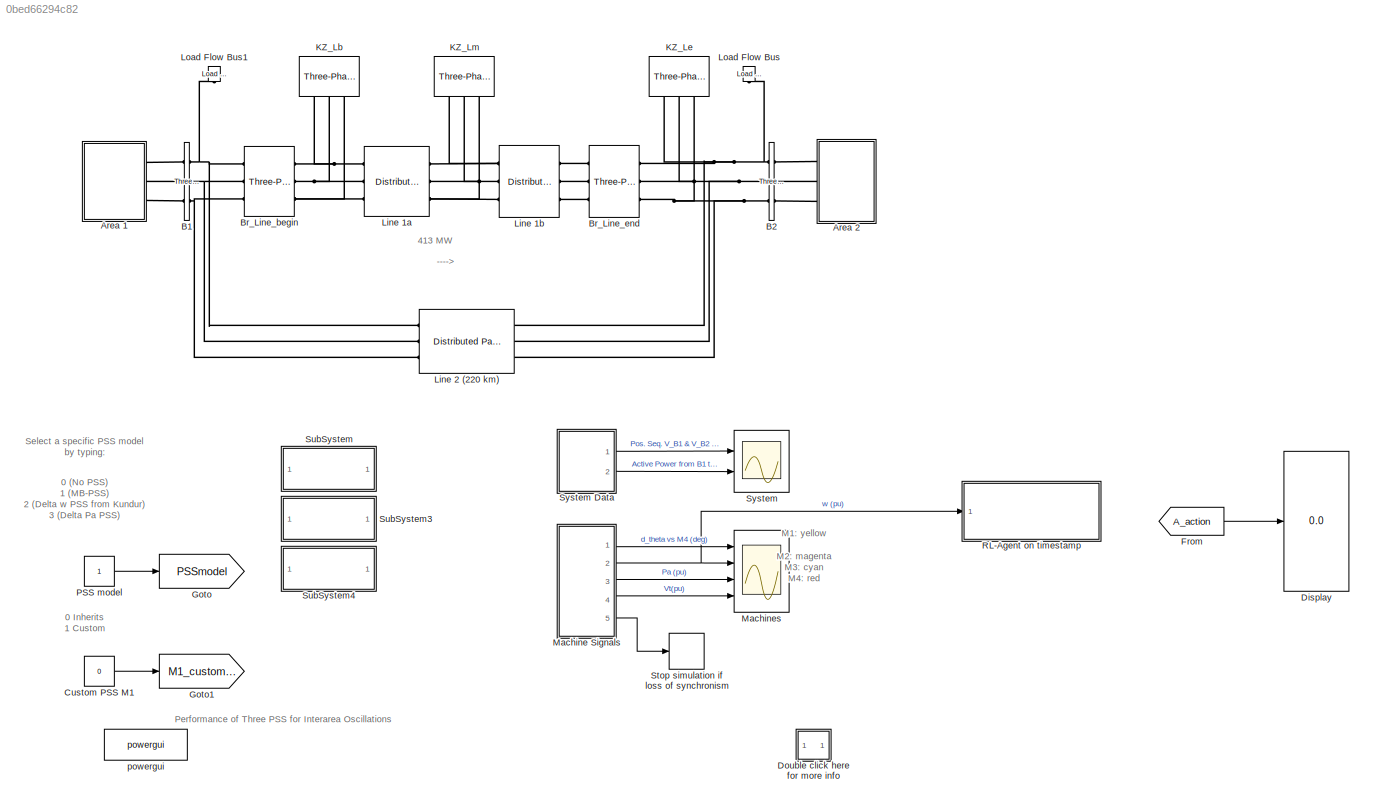
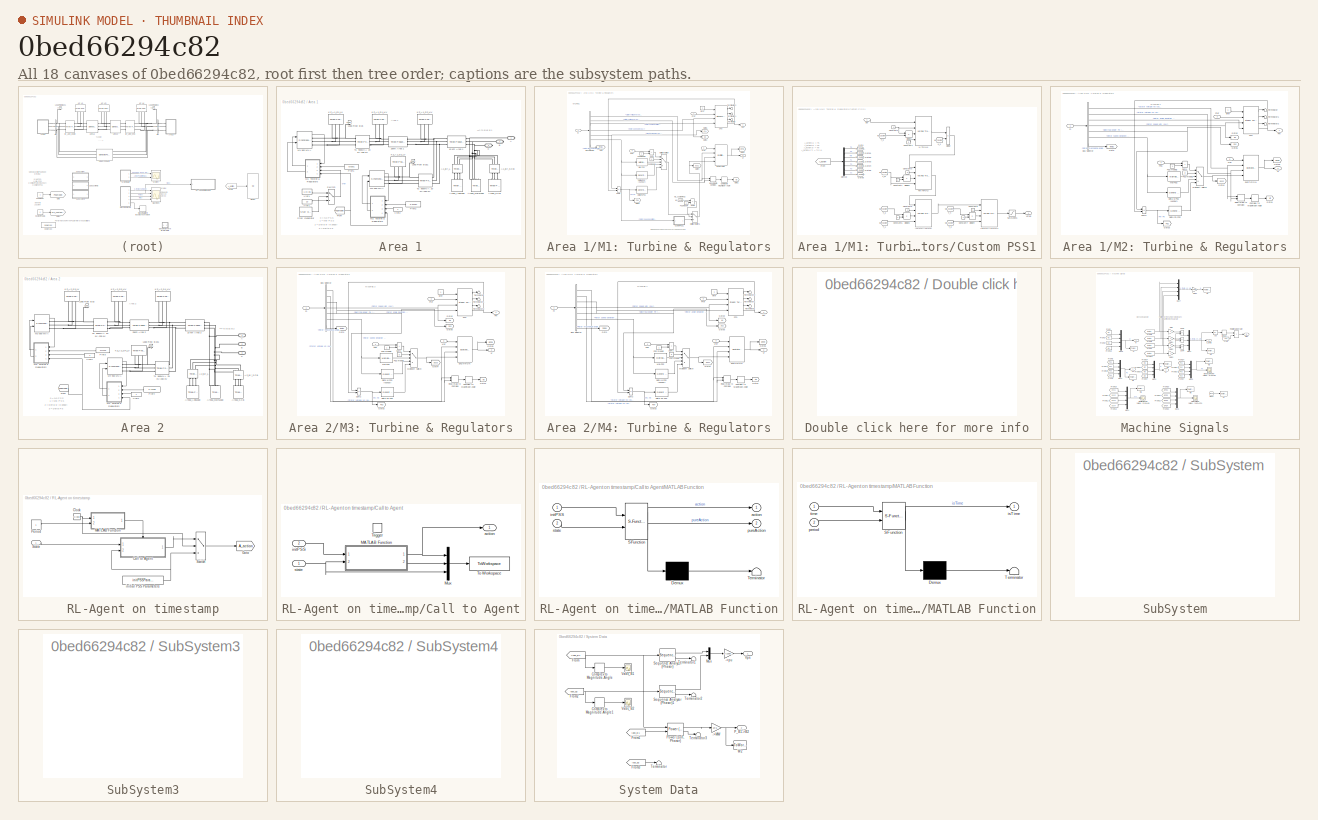
[diagram: thumbnail index - all 18 canvases of the model, root first then tree order]
MODEL slx_0bed66294c82
KIND model
CONFIG AbsTol = auto
CONFIG EnableMultiTasking = on
CONFIG FixedStep = 1/60/100
CONFIG MaxStep = 1/60
CONFIG MinStep = auto
CONFIG RelTol = 1e-3
CONFIG SampleTimeConstraint = Unconstrained
CONFIG SolverName = VariableStepAuto
CONFIG StartTime = 0.0
CONFIG StopTime = 20
BLOCK [SubSystem] Area 1
  Ports = [0, 0, 0, 0, 0, 0, 3]
  RequestExecContextInheritance = off
BLOCK [PMIOPort] Area 1/ A
  Side = Right
BLOCK [PMIOPort] Area 1/ B
  Port = 2
  Side = Right
BLOCK [PMIOPort] Area 1/ C
  Port = 3
  Side = Right
BLOCK [Reference] Area 1/10 km Area 1  REF=spsThreePhasePISectionLineLib/Three-Phase
PI Section Line
  AttributesFormatString = \n
  Ports = [0, 0, 0, 0, 0, 3, 3]
  SourceBlock = spsThreePhasePISectionLineLib/Three-Phase\nPI Section Line
  SourceProductBaseCode = PS
  SourceType = Three-Phase PI Section Line
BLOCK [Reference] Area 1/25km Area 1  REF=spsThreePhasePISectionLineLib/Three-Phase
PI Section Line
  AttributesFormatString = \n
  Ports = [0, 0, 0, 0, 0, 3, 3]
  SourceBlock = spsThreePhasePISectionLineLib/Three-Phase\nPI Section Line
  SourceProductBaseCode = PS
  SourceType = Three-Phase PI Section Line
BLOCK [Reference] Area 1/A1_Br_L  REF=spsThreePhaseBreakerLib/Three-Phase Breaker
  AttributesFormatString = \n
  NameLocation = left
  Ports = [0, 0, 0, 0, 0, 3, 3]
  SourceBlock = spsThreePhaseBreakerLib/Three-Phase Breaker
  SourceProductBaseCode = PS
  SourceType = Three-Phase Breaker
BLOCK [Reference] Area 1/A1_Br_SCB  REF=spsThreePhaseBreakerLib/Three-Phase Breaker
  AttributesFormatString = \n
  NameLocation = right
  Ports = [0, 0, 0, 0, 0, 3, 3]
  SourceBlock = spsThreePhaseBreakerLib/Three-Phase Breaker
  SourceProductBaseCode = PS
  SourceType = Three-Phase Breaker
BLOCK [Reference] Area 1/Area1_AddLoad  REF=spsThreePhaseParallelRLCLoadLib/Three-Phase
Parallel RLC Load
  AttributesFormatString = \n
  Ports = [0, 0, 0, 0, 0, 3]
  SourceBlock = spsThreePhaseParallelRLCLoadLib/Three-Phase\nParallel RLC Load
  SourceProductBaseCode = PS
  SourceType = Three-Phase Parallel RLC Load
BLOCK [Reference] Area 1/Area1_MainLoad  REF=spsThreePhaseParallelRLCLoadLib/Three-Phase
Parallel RLC Load
  AttributesFormatString = \n
  Ports = [0, 0, 0, 0, 0, 3]
  SourceBlock = spsThreePhaseParallelRLCLoadLib/Three-Phase\nParallel RLC Load
  SourceProductBaseCode = PS
  SourceType = Three-Phase Parallel RLC Load
BLOCK [Reference] Area 1/Area1_SCB  REF=spsThreePhaseParallelRLCLoadLib/Three-Phase
Parallel RLC Load
  AttributesFormatString = \n
  Ports = [0, 0, 0, 0, 0, 3]
  SourceBlock = spsThreePhaseParallelRLCLoadLib/Three-Phase\nParallel RLC Load
  SourceProductBaseCode = PS
  SourceType = Three-Phase Parallel RLC Load
BLOCK [From] Area 1/From
  CloseFcn = tagdialog Close
  GotoTag = PSSmodel
  TagVisibility = global
BLOCK [Reference] Area 1/KZ_A1_G1_HV  REF=spsThreePhaseFaultLib/Three-Phase Fault
  NameLocation = top
  Ports = [0, 0, 0, 0, 0, 3]
  SourceBlock = spsThreePhaseFaultLib/Three-Phase Fault
  SourceProductBaseCode = PS
  SourceType = Three-Phase Fault
BLOCK [Reference] Area 1/KZ_A1_G1_LV  REF=spsThreePhaseFaultLib/Three-Phase Fault
  NameLocation = top
  Ports = [0, 0, 0, 0, 0, 3]
  SourceBlock = spsThreePhaseFaultLib/Three-Phase Fault
  SourceProductBaseCode = PS
  SourceType = Three-Phase Fault
BLOCK [Reference] Area 1/KZ_A1_G2_HV  REF=spsThreePhaseFaultLib/Three-Phase Fault
  NameLocation = top
  Ports = [0, 0, 0, 0, 0, 3]
  SourceBlock = spsThreePhaseFaultLib/Three-Phase Fault
  SourceProductBaseCode = PS
  SourceType = Three-Phase Fault
BLOCK [Reference] Area 1/KZ_A1_G2_LV  REF=spsThreePhaseFaultLib/Three-Phase Fault
  NameLocation = top
  Ports = [0, 0, 0, 0, 0, 3]
  SourceBlock = spsThreePhaseFaultLib/Three-Phase Fault
  SourceProductBaseCode = PS
  SourceType = Three-Phase Fault
BLOCK [Reference] Area 1/Load Flow Bus  REF=spsLoadFlowBusLib/Load Flow Bus
  AttributesFormatString = %<ID>\n%<Vbase>V\n%<VLF>pu\n%<angleLF>deg.
  NameLocation = right
  Ports = [0, 0, 0, 0, 0, 1]
  SourceBlock = spsLoadFlowBusLib/Load Flow Bus
  SourceProductBaseCode = PS
  SourceType = Load Flow Bus
BLOCK [Reference] Area 1/Load Flow Bus1  REF=spsLoadFlowBusLib/Load Flow Bus
  AttributesFormatString = %<ID>\n%<Vbase>V\n%<VLF>pu\n%<angleLF>deg.
  NameLocation = right
  Ports = [0, 0, 0, 0, 0, 1]
  SourceBlock = spsLoadFlowBusLib/Load Flow Bus
  SourceProductBaseCode = PS
  SourceType = Load Flow Bus
BLOCK [Reference] Area 1/M1 900 MVA  REF=spsSynchronousMachinepuStandardLib/Synchronous Machine
pu Standard
  AttributesFormatString = \n\n
  Ports = [2, 1, 0, 0, 0, 0, 3]
  SourceBlock = spsSynchronousMachinepuStandardLib/Synchronous Machine\npu Standard
  SourceProductBaseCode = PS
  SourceType = Synchronous Machine
BLOCK [SubSystem] Area 1/M1: Turbine & Regulators
  Ports = [4, 2]
  RequestExecContextInheritance = off
BLOCK [BusSelector] Area 1/M1: Turbine & Regulators/Bus Selector
  OutputSignals = dq0 components.Stator voltage  vd (pu),dq0 components.Stator voltage  vq (pu),Mechanical.Rotor angle deviation  d_theta (rad),Mechanical.Rotor speed  wm  (pu),Mechanical.Electrical power  Pe (pu),Mechanical.Rotor speed deviation  dw (pu),Mechanical.Rotor mechanical angle  theta (deg)  <repeated x4 — deduplicated; at blocks: Bus Selector>
  Ports = [1, 7]
BLOCK [ComplexToMagnitudeAngle] Area 1/M1: Turbine & Regulators/Complex to Magnitude-Angle
  Output = Magnitude
  Ports = [1, 1]
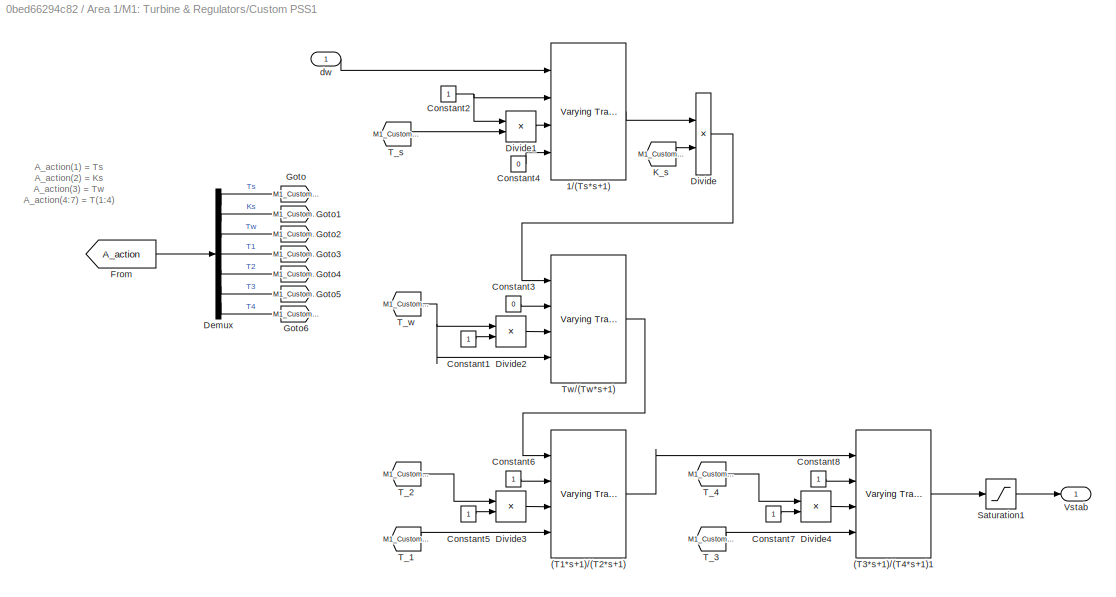
BLOCK [SubSystem] Area 1/M1: Turbine & Regulators/Custom PSS1
  Ports = [1, 1]
  RequestExecContextInheritance = off
BLOCK [Reference] Area 1/M1: Turbine & Regulators/Custom PSS1/(T1*s+1)//(T2*s+1)  REF=cstblocks/Linear Parameter Varying/Varying Transfer Function
  Ports = [4, 1]
  SourceBlock = cstblocks/Linear Parameter Varying/Varying Transfer Function
  SourceProductBaseCode = CT
  SourceType = Varying Transfer Function
BLOCK [Reference] Area 1/M1: Turbine & Regulators/Custom PSS1/(T3*s+1)//(T4*s+1)1  REF=cstblocks/Linear Parameter Varying/Varying Transfer Function
  Ports = [4, 1]
  SourceBlock = cstblocks/Linear Parameter Varying/Varying Transfer Function
  SourceProductBaseCode = CT
  SourceType = Varying Transfer Function
BLOCK [Reference] Area 1/M1: Turbine & Regulators/Custom PSS1/1//(Ts*s+1)  REF=cstblocks/Linear Parameter Varying/Varying Transfer Function
  Ports = [4, 1]
  SourceBlock = cstblocks/Linear Parameter Varying/Varying Transfer Function
  SourceProductBaseCode = CT
  SourceType = Varying Transfer Function
BLOCK [Constant] Area 1/M1: Turbine & Regulators/Custom PSS1/Constant1
BLOCK [Constant] Area 1/M1: Turbine & Regulators/Custom PSS1/Constant2
BLOCK [Constant] Area 1/M1: Turbine & Regulators/Custom PSS1/Constant3
  Value = 0
BLOCK [Constant] Area 1/M1: Turbine & Regulators/Custom PSS1/Constant4
  Value = 0
BLOCK [Constant] Area 1/M1: Turbine & Regulators/Custom PSS1/Constant5
BLOCK [Constant] Area 1/M1: Turbine & Regulators/Custom PSS1/Constant6
BLOCK [Constant] Area 1/M1: Turbine & Regulators/Custom PSS1/Constant7
BLOCK [Constant] Area 1/M1: Turbine & Regulators/Custom PSS1/Constant8
BLOCK [Demux] Area 1/M1: Turbine & Regulators/Custom PSS1/Demux
  Outputs = 7
  Ports = [1, 7]
BLOCK [Product] Area 1/M1: Turbine & Regulators/Custom PSS1/Divide
  Inputs = **
  Ports = [2, 1]
BLOCK [Product] Area 1/M1: Turbine & Regulators/Custom PSS1/Divide1
  Inputs = */
  Ports = [2, 1]
BLOCK [Product] Area 1/M1: Turbine & Regulators/Custom PSS1/Divide2
  Inputs = /*
  Ports = [2, 1]
BLOCK [Product] Area 1/M1: Turbine & Regulators/Custom PSS1/Divide3
  Inputs = /*
  Ports = [2, 1]
BLOCK [Product] Area 1/M1: Turbine & Regulators/Custom PSS1/Divide4
  Inputs = /*
  Ports = [2, 1]
BLOCK [From] Area 1/M1: Turbine & Regulators/Custom PSS1/From
  GotoTag = A_action
  TagVisibility = global
BLOCK [Goto] Area 1/M1: Turbine & Regulators/Custom PSS1/Goto
  GotoTag = M1_CustomPss_Ts
BLOCK [Goto] Area 1/M1: Turbine & Regulators/Custom PSS1/Goto1
  GotoTag = M1_CustomPss_Ks
BLOCK [Goto] Area 1/M1: Turbine & Regulators/Custom PSS1/Goto2
  GotoTag = M1_CustomPss_Tw
BLOCK [Goto] Area 1/M1: Turbine & Regulators/Custom PSS1/Goto3
  GotoTag = M1_CustomPss_T1
BLOCK [Goto] Area 1/M1: Turbine & Regulators/Custom PSS1/Goto4
  GotoTag = M1_CustomPss_T2
BLOCK [Goto] Area 1/M1: Turbine & Regulators/Custom PSS1/Goto5
  GotoTag = M1_CustomPss_T3
BLOCK [Goto] Area 1/M1: Turbine & Regulators/Custom PSS1/Goto6
  GotoTag = M1_CustomPss_T4
BLOCK [From] Area 1/M1: Turbine & Regulators/Custom PSS1/K_s
  GotoTag = M1_CustomPss_Ks
BLOCK [Saturate] Area 1/M1: Turbine & Regulators/Custom PSS1/Saturation1
  LowerLimit = lower
  UpperLimit = upper
BLOCK [From] Area 1/M1: Turbine & Regulators/Custom PSS1/T_1
  GotoTag = M1_CustomPss_T1
BLOCK [From] Area 1/M1: Turbine & Regulators/Custom PSS1/T_2
  GotoTag = M1_CustomPss_T2
BLOCK [From] Area 1/M1: Turbine & Regulators/Custom PSS1/T_3
  GotoTag = M1_CustomPss_T3
BLOCK [From] Area 1/M1: Turbine & Regulators/Custom PSS1/T_4
  GotoTag = M1_CustomPss_T4
BLOCK [From] Area 1/M1: Turbine & Regulators/Custom PSS1/T_s
  GotoTag = M1_CustomPss_Ts
BLOCK [From] Area 1/M1: Turbine & Regulators/Custom PSS1/T_w
  GotoTag = M1_CustomPss_Tw
BLOCK [Reference] Area 1/M1: Turbine & Regulators/Custom PSS1/Tw//(Tw*s+1)  REF=cstblocks/Linear Parameter Varying/Varying Transfer Function
  Ports = [4, 1]
  SourceBlock = cstblocks/Linear Parameter Varying/Varying Transfer Function
  SourceProductBaseCode = CT
  SourceType = Varying Transfer Function
BLOCK [Outport] Area 1/M1: Turbine & Regulators/Custom PSS1/Vstab
BLOCK [Inport] Area 1/M1: Turbine & Regulators/Custom PSS1/dw
BLOCK [Reference] Area 1/M1: Turbine & Regulators/Delta Pa PSS   REF=spsGenericPowerSystemStabilizerLib/Generic
Power System Stabilizer
  Ports = [1, 1]
  SourceBlock = spsGenericPowerSystemStabilizerLib/Generic\nPower System Stabilizer
  SourceProductBaseCode = PS
  SourceType = Generic Power System Stabilizer
BLOCK [Reference] Area 1/M1: Turbine & Regulators/Delta w PSS (Kundur)   REF=spsGenericPowerSystemStabilizerLib/Generic
Power System Stabilizer
  Ports = [1, 1]
  SourceBlock = spsGenericPowerSystemStabilizerLib/Generic\nPower System Stabilizer
  SourceProductBaseCode = PS
  SourceType = Generic Power System Stabilizer
BLOCK [Reference] Area 1/M1: Turbine & Regulators/EXCITATION  REF=spsExcitationSystemLib/Excitation System
  Ports = [4, 1]
  SourceBlock = spsExcitationSystemLib/Excitation System
  SourceProductBaseCode = PS
  SourceType = Excitation System
BLOCK [Goto] Area 1/M1: Turbine & Regulators/Goto
  GotoTag = theta1
  TagVisibility = global
BLOCK [Goto] Area 1/M1: Turbine & Regulators/Goto1
  GotoTag = Vt1
  TagVisibility = global
BLOCK [Goto] Area 1/M1: Turbine & Regulators/Goto2
  GotoTag = w1
  TagVisibility = global
BLOCK [Goto] Area 1/M1: Turbine & Regulators/Goto3
  GotoTag = Pa1
  TagVisibility = global
BLOCK [Goto] Area 1/M1: Turbine & Regulators/Goto4
  GotoTag = pss1
  TagVisibility = global
BLOCK [Goto] Area 1/M1: Turbine & Regulators/Goto5
  GotoTag = EFD1
  TagVisibility = global
BLOCK [Goto] Area 1/M1: Turbine & Regulators/Goto6
  GotoTag = Pe1
  TagVisibility = global
BLOCK [From] Area 1/M1: Turbine & Regulators/M1_customPSS
  GotoTag = M1_customPSS
  NameLocation = top
  TagVisibility = global
BLOCK [Reference] Area 1/M1: Turbine & Regulators/MB-PSS   REF=spsMultiBandPowerSystemStabilizerLib/Multi-Band
Power System Stabilizer
  Ports = [1, 1]
  SourceBlock = spsMultiBandPowerSystemStabilizerLib/Multi-Band\nPower System Stabilizer
  SourceProductBaseCode = PS
  SourceType = Multi-Band Power System Stabilizer
BLOCK [MultiPortSwitch] Area 1/M1: Turbine & Regulators/Multiport Switch
  Inputs = 4
  Ports = [5, 1]
  SaturateOnIntegerOverflow = off
BLOCK [MultiPortSwitch] Area 1/M1: Turbine & Regulators/Multiport Switch1
  Inputs = 2
  Ports = [3, 1]
  SaturateOnIntegerOverflow = off
BLOCK [Inport] Area 1/M1: Turbine & Regulators/PSS
  Port = 4
BLOCK [Constant] Area 1/M1: Turbine & Regulators/PSS model1
  Value = 0
BLOCK [Constant] Area 1/M1: Turbine & Regulators/PSS model2
BLOCK [Constant] Area 1/M1: Turbine & Regulators/PSS model4
BLOCK [Outport] Area 1/M1: Turbine & Regulators/Pm
  InitialOutput = 0
  VectorParamsAs1DForOutWhenUnconnected = off
BLOCK [Inport] Area 1/M1: Turbine & Regulators/Pref
  Port = 2
BLOCK [RealImagToComplex] Area 1/M1: Turbine & Regulators/Real-Imag to Complex
  Ports = [2, 1]
BLOCK [Reference] Area 1/M1: Turbine & Regulators/STG  REF=spsSteamTurbineandGovernorLib/Steam Turbine
and Governor
  Ports = [4, 4]
  SourceBlock = spsSteamTurbineandGovernorLib/Steam Turbine\nand Governor
  SourceProductBaseCode = PS
  SourceType = Steam Turbine and Governor
BLOCK [Sum] Area 1/M1: Turbine & Regulators/Sum1
  IconShape = rectangular
  InputSameDT = on
  OutDataTypeStr = Inherit: Same as first input
  Ports = [2, 1]
  SaturateOnIntegerOverflow = on
BLOCK [Sum] Area 1/M1: Turbine & Regulators/Sum2
  IconShape = rectangular
  InputSameDT = on
  Inputs = -+
  OutDataTypeStr = Inherit: Same as first input
  Ports = [2, 1]
  SaturateOnIntegerOverflow = on
BLOCK [Sum] Area 1/M1: Turbine & Regulators/Sum3
  IconShape = rectangular
  InputSameDT = on
  OutDataTypeStr = Inherit: Same as first input
  Ports = [2, 1]
  SaturateOnIntegerOverflow = on
BLOCK [Terminator] Area 1/M1: Turbine & Regulators/Terminator
BLOCK [Terminator] Area 1/M1: Turbine & Regulators/Terminator1
BLOCK [Terminator] Area 1/M1: Turbine & Regulators/Terminator2
BLOCK [Outport] Area 1/M1: Turbine & Regulators/Vf
  InitialOutput = 0
  Port = 2
  VectorParamsAs1DForOutWhenUnconnected = off
BLOCK [Inport] Area 1/M1: Turbine & Regulators/Vref
  Port = 3
BLOCK [Inport] Area 1/M1: Turbine & Regulators/m
BLOCK [Constant] Area 1/M1: Turbine & Regulators/wref
  NameLocation = top
BLOCK [Reference] Area 1/M2 900 MVA  REF=spsSynchronousMachinepuStandardLib/Synchronous Machine
pu Standard
  AttributesFormatString = \n\n
  Ports = [2, 1, 0, 0, 0, 0, 3]
  SourceBlock = spsSynchronousMachinepuStandardLib/Synchronous Machine\npu Standard
  SourceProductBaseCode = PS
  SourceType = Synchronous Machine
BLOCK [SubSystem] Area 1/M2: Turbine & Regulators
  Ports = [4, 2]
  RequestExecContextInheritance = off
BLOCK [BusSelector] Area 1/M2: Turbine & Regulators/Bus Selector
  Ports = [1, 7]
BLOCK [ComplexToMagnitudeAngle] Area 1/M2: Turbine & Regulators/Complex to Magnitude-Angle
  Output = Magnitude
  Ports = [1, 1]
BLOCK [Reference] Area 1/M2: Turbine & Regulators/Delta Pa PSS   REF=spsGenericPowerSystemStabilizerLib/Generic
Power System Stabilizer
  Ports = [1, 1]
  SourceBlock = spsGenericPowerSystemStabilizerLib/Generic\nPower System Stabilizer
  SourceProductBaseCode = PS
  SourceType = Generic Power System Stabilizer
BLOCK [Reference] Area 1/M2: Turbine & Regulators/Delta w PSS (Kundur)   REF=spsGenericPowerSystemStabilizerLib/Generic
Power System Stabilizer
  Ports = [1, 1]
  SourceBlock = spsGenericPowerSystemStabilizerLib/Generic\nPower System Stabilizer
  SourceProductBaseCode = PS
  SourceType = Generic Power System Stabilizer
BLOCK [Reference] Area 1/M2: Turbine & Regulators/EXCITATION  REF=spsExcitationSystemLib/Excitation System
  Ports = [4, 1]
  SourceBlock = spsExcitationSystemLib/Excitation System
  SourceProductBaseCode = PS
  SourceType = Excitation System
BLOCK [Goto] Area 1/M2: Turbine & Regulators/Goto
  GotoTag = theta2
  TagVisibility = global
BLOCK [Goto] Area 1/M2: Turbine & Regulators/Goto1
  GotoTag = Vt2
  TagVisibility = global
BLOCK [Goto] Area 1/M2: Turbine & Regulators/Goto2
  GotoTag = w2
  TagVisibility = global
BLOCK [Goto] Area 1/M2: Turbine & Regulators/Goto3
  GotoTag = Pa2
  TagVisibility = global
BLOCK [Goto] Area 1/M2: Turbine & Regulators/Goto4
  GotoTag = pss2
  TagVisibility = global
BLOCK [Goto] Area 1/M2: Turbine & Regulators/Goto5
  GotoTag = EFD2
  TagVisibility = global
BLOCK [Goto] Area 1/M2: Turbine & Regulators/Goto6
  GotoTag = Pe2
  TagVisibility = global
BLOCK [Reference] Area 1/M2: Turbine & Regulators/MB-PSS   REF=spsMultiBandPowerSystemStabilizerLib/Multi-Band
Power System Stabilizer
  Ports = [1, 1]
  SourceBlock = spsMultiBandPowerSystemStabilizerLib/Multi-Band\nPower System Stabilizer
  SourceProductBaseCode = PS
  SourceType = Multi-Band Power System Stabilizer
BLOCK [MultiPortSwitch] Area 1/M2: Turbine & Regulators/Multiport Switch
  Inputs = 4
  Ports = [5, 1]
  SaturateOnIntegerOverflow = off
BLOCK [Inport] Area 1/M2: Turbine & Regulators/PSS
  Port = 4
BLOCK [Constant] Area 1/M2: Turbine & Regulators/PSS model1
  Value = 0
BLOCK [Constant] Area 1/M2: Turbine & Regulators/PSS model2
BLOCK [Outport] Area 1/M2: Turbine & Regulators/Pm
  InitialOutput = 0
  VectorParamsAs1DForOutWhenUnconnected = off
BLOCK [Inport] Area 1/M2: Turbine & Regulators/Pref
  Port = 2
BLOCK [RealImagToComplex] Area 1/M2: Turbine & Regulators/Real-Imag to Complex
  Ports = [2, 1]
BLOCK [Reference] Area 1/M2: Turbine & Regulators/STG  REF=spsSteamTurbineandGovernorLib/Steam Turbine
and Governor
  Ports = [4, 4]
  SourceBlock = spsSteamTurbineandGovernorLib/Steam Turbine\nand Governor
  SourceProductBaseCode = PS
  SourceType = Steam Turbine and Governor
BLOCK [Sum] Area 1/M2: Turbine & Regulators/Sum1
  IconShape = rectangular
  InputSameDT = on
  OutDataTypeStr = Inherit: Same as first input
  Ports = [2, 1]
  SaturateOnIntegerOverflow = on
BLOCK [Sum] Area 1/M2: Turbine & Regulators/Sum2
  IconShape = rectangular
  InputSameDT = on
  Inputs = -+
  OutDataTypeStr = Inherit: Same as first input
  Ports = [2, 1]
  SaturateOnIntegerOverflow = on
BLOCK [Terminator] Area 1/M2: Turbine & Regulators/Terminator
BLOCK [Terminator] Area 1/M2: Turbine & Regulators/Terminator1
BLOCK [Terminator] Area 1/M2: Turbine & Regulators/Terminator2
BLOCK [Outport] Area 1/M2: Turbine & Regulators/Vf
  InitialOutput = 0
  Port = 2
  VectorParamsAs1DForOutWhenUnconnected = off
BLOCK [Inport] Area 1/M2: Turbine & Regulators/Vref
  Port = 3
BLOCK [Inport] Area 1/M2: Turbine & Regulators/m
BLOCK [Constant] Area 1/M2: Turbine & Regulators/wref
  NameLocation = top
BLOCK [Constant] Area 1/Pref1
  Value = 0.73881
BLOCK [Constant] Area 1/Pref2
  Value = 0.51267
BLOCK [Reference] Area 1/Stair Generator  REF=spsStairGeneratorLib/Stair
Generator
  Ports = [0, 1]
  SourceBlock = spsStairGeneratorLib/Stair\nGenerator
  SourceProductBaseCode = PS
  SourceType = Stair Generator
BLOCK [Switch] Area 1/Switch
  SaturateOnIntegerOverflow = off
  Threshold = 1
BLOCK [Reference] Area 1/T1: 900MVA 20 kV-230 kV  REF=spsThreePhaseTransformerTwoWindingsLib/Three-Phase
Transformer
(Two Windings)
  AttributesFormatString = \n
  Ports = [0, 0, 0, 0, 0, 3, 3]
  SourceBlock = spsThreePhaseTransformerTwoWindingsLib/Three-Phase\nTransformer\n(Two Windings)
  SourceProductBaseCode = PS
  SourceType = Three-Phase Transformer (Two Windings)
BLOCK [Reference] Area 1/T2: 900MVA 20 kV//230 kV  REF=spsThreePhaseTransformerTwoWindingsLib/Three-Phase
Transformer
(Two Windings)
  AttributesFormatString = \n
  Ports = [0, 0, 0, 0, 0, 3, 3]
  SourceBlock = spsThreePhaseTransformerTwoWindingsLib/Three-Phase\nTransformer\n(Two Windings)
  SourceProductBaseCode = PS
  SourceType = Three-Phase Transformer (Two Windings)
BLOCK [Constant] Area 1/Vref1
  NameLocation = top
  Value = 1.0
BLOCK [Constant] Area 1/Vref1 
  Value = 1.0+.05
BLOCK [Constant] Area 1/Vref2
BLOCK [SubSystem] Area 2
  Ports = [0, 0, 0, 0, 0, 3]
  RequestExecContextInheritance = off
BLOCK [Reference] Area 2/10 km Area 2  REF=spsThreePhasePISectionLineLib/Three-Phase
PI Section Line
  AttributesFormatString = \n
  Ports = [0, 0, 0, 0, 0, 3, 3]
  SourceBlock = spsThreePhasePISectionLineLib/Three-Phase\nPI Section Line
  SourceProductBaseCode = PS
  SourceType = Three-Phase PI Section Line
BLOCK [Reference] Area 2/25km Area 2  REF=spsThreePhasePISectionLineLib/Three-Phase
PI Section Line
  AttributesFormatString = \n
  Ports = [0, 0, 0, 0, 0, 3, 3]
  SourceBlock = spsThreePhasePISectionLineLib/Three-Phase\nPI Section Line
  SourceProductBaseCode = PS
  SourceType = Three-Phase PI Section Line
BLOCK [PMIOPort] Area 2/A
  Side = Left
BLOCK [Reference] Area 2/A2_Br_L  REF=spsThreePhaseBreakerLib/Three-Phase Breaker
  AttributesFormatString = \n
  NameLocation = left
  Ports = [0, 0, 0, 0, 0, 3, 3]
  SourceBlock = spsThreePhaseBreakerLib/Three-Phase Breaker
  SourceProductBaseCode = PS
  SourceType = Three-Phase Breaker
BLOCK [Reference] Area 2/A2_Br_SCB  REF=spsThreePhaseBreakerLib/Three-Phase Breaker
  AttributesFormatString = \n
  NameLocation = right
  Ports = [0, 0, 0, 0, 0, 3, 3]
  SourceBlock = spsThreePhaseBreakerLib/Three-Phase Breaker
  SourceProductBaseCode = PS
  SourceType = Three-Phase Breaker
BLOCK [Reference] Area 2/Area2_AddLoad  REF=spsThreePhaseParallelRLCLoadLib/Three-Phase
Parallel RLC Load
  AttributesFormatString = \n
  Ports = [0, 0, 0, 0, 0, 3]
  SourceBlock = spsThreePhaseParallelRLCLoadLib/Three-Phase\nParallel RLC Load
  SourceProductBaseCode = PS
  SourceType = Three-Phase Parallel RLC Load
BLOCK [Reference] Area 2/Area2_MainLoad  REF=spsThreePhaseParallelRLCLoadLib/Three-Phase
Parallel RLC Load
  AttributesFormatString = \n
  Ports = [0, 0, 0, 0, 0, 3]
  SourceBlock = spsThreePhaseParallelRLCLoadLib/Three-Phase\nParallel RLC Load
  SourceProductBaseCode = PS
  SourceType = Three-Phase Parallel RLC Load
BLOCK [Reference] Area 2/Area2_SCB  REF=spsThreePhaseParallelRLCLoadLib/Three-Phase
Parallel RLC Load
  AttributesFormatString = \n
  Ports = [0, 0, 0, 0, 0, 3]
  SourceBlock = spsThreePhaseParallelRLCLoadLib/Three-Phase\nParallel RLC Load
  SourceProductBaseCode = PS
  SourceType = Three-Phase Parallel RLC Load
BLOCK [PMIOPort] Area 2/B
  Port = 2
  Side = Left
BLOCK [PMIOPort] Area 2/C
  Port = 3
  Side = Left
BLOCK [From] Area 2/From
  CloseFcn = tagdialog Close
  GotoTag = PSSmodel
  TagVisibility = global
BLOCK [Reference] Area 2/KZ_A2_G3_HV  REF=spsThreePhaseFaultLib/Three-Phase Fault
  NameLocation = top
  Ports = [0, 0, 0, 0, 0, 3]
  SourceBlock = spsThreePhaseFaultLib/Three-Phase Fault
  SourceProductBaseCode = PS
  SourceType = Three-Phase Fault
BLOCK [Reference] Area 2/KZ_A2_G3_LV  REF=spsThreePhaseFaultLib/Three-Phase Fault
  NameLocation = top
  Ports = [0, 0, 0, 0, 0, 3]
  SourceBlock = spsThreePhaseFaultLib/Three-Phase Fault
  SourceProductBaseCode = PS
  SourceType = Three-Phase Fault
BLOCK [Reference] Area 2/KZ_A2_G4_HV  REF=spsThreePhaseFaultLib/Three-Phase Fault
  NameLocation = top
  Ports = [0, 0, 0, 0, 0, 3]
  SourceBlock = spsThreePhaseFaultLib/Three-Phase Fault
  SourceProductBaseCode = PS
  SourceType = Three-Phase Fault
BLOCK [Reference] Area 2/KZ_A2_G4_LV  REF=spsThreePhaseFaultLib/Three-Phase Fault
  NameLocation = top
  Ports = [0, 0, 0, 0, 0, 3]
  SourceBlock = spsThreePhaseFaultLib/Three-Phase Fault
  SourceProductBaseCode = PS
  SourceType = Three-Phase Fault
BLOCK [Reference] Area 2/Load Flow Bus  REF=spsLoadFlowBusLib/Load Flow Bus
  AttributesFormatString = %<ID>\n%<Vbase>V\n%<VLF>pu\n%<angleLF>deg.
  NameLocation = right
  Ports = [0, 0, 0, 0, 0, 1]
  SourceBlock = spsLoadFlowBusLib/Load Flow Bus
  SourceProductBaseCode = PS
  SourceType = Load Flow Bus
BLOCK [Reference] Area 2/Load Flow Bus1  REF=spsLoadFlowBusLib/Load Flow Bus
  AttributesFormatString = %<ID>\n%<Vbase>V\n%<VLF>pu\n%<angleLF>deg.
  NameLocation = right
  Ports = [0, 0, 0, 0, 0, 1]
  SourceBlock = spsLoadFlowBusLib/Load Flow Bus
  SourceProductBaseCode = PS
  SourceType = Load Flow Bus
BLOCK [Reference] Area 2/M3 900 MVA  REF=spsSynchronousMachinepuStandardLib/Synchronous Machine
pu Standard
  AttributesFormatString = \n\n
  Ports = [2, 1, 0, 0, 0, 0, 3]
  SourceBlock = spsSynchronousMachinepuStandardLib/Synchronous Machine\npu Standard
  SourceProductBaseCode = PS
  SourceType = Synchronous Machine
BLOCK [SubSystem] Area 2/M3: Turbine & Regulators
  Ports = [4, 2]
  RequestExecContextInheritance = off
BLOCK [BusSelector] Area 2/M3: Turbine & Regulators/Bus Selector
  Ports = [1, 7]
BLOCK [ComplexToMagnitudeAngle] Area 2/M3: Turbine & Regulators/Complex to Magnitude-Angle
  Output = Magnitude
  Ports = [1, 1]
BLOCK [Reference] Area 2/M3: Turbine & Regulators/Delta Pa PSS   REF=spsGenericPowerSystemStabilizerLib/Generic
Power System Stabilizer
  Ports = [1, 1]
  SourceBlock = spsGenericPowerSystemStabilizerLib/Generic\nPower System Stabilizer
  SourceProductBaseCode = PS
  SourceType = Generic Power System Stabilizer
BLOCK [Reference] Area 2/M3: Turbine & Regulators/Delta w PSS (Kundur)   REF=spsGenericPowerSystemStabilizerLib/Generic
Power System Stabilizer
  Ports = [1, 1]
  SourceBlock = spsGenericPowerSystemStabilizerLib/Generic\nPower System Stabilizer
  SourceProductBaseCode = PS
  SourceType = Generic Power System Stabilizer
BLOCK [Reference] Area 2/M3: Turbine & Regulators/EXCITATION  REF=spsExcitationSystemLib/Excitation System
  Ports = [4, 1]
  SourceBlock = spsExcitationSystemLib/Excitation System
  SourceProductBaseCode = PS
  SourceType = Excitation System
BLOCK [Goto] Area 2/M3: Turbine & Regulators/Goto
  GotoTag = theta3
  TagVisibility = global
BLOCK [Goto] Area 2/M3: Turbine & Regulators/Goto1
  GotoTag = Vt3
  TagVisibility = global
BLOCK [Goto] Area 2/M3: Turbine & Regulators/Goto2
  GotoTag = w3
  TagVisibility = global
BLOCK [Goto] Area 2/M3: Turbine & Regulators/Goto3
  GotoTag = Pa3
  TagVisibility = global
BLOCK [Goto] Area 2/M3: Turbine & Regulators/Goto4
  GotoTag = pss3
  TagVisibility = global
BLOCK [Goto] Area 2/M3: Turbine & Regulators/Goto5
  GotoTag = EFD3
  TagVisibility = global
BLOCK [Goto] Area 2/M3: Turbine & Regulators/Goto6
  GotoTag = Pe3
  TagVisibility = global
BLOCK [Reference] Area 2/M3: Turbine & Regulators/MB-PSS   REF=spsMultiBandPowerSystemStabilizerLib/Multi-Band
Power System Stabilizer
  Ports = [1, 1]
  SourceBlock = spsMultiBandPowerSystemStabilizerLib/Multi-Band\nPower System Stabilizer
  SourceProductBaseCode = PS
  SourceType = Multi-Band Power System Stabilizer
BLOCK [MultiPortSwitch] Area 2/M3: Turbine & Regulators/Multiport Switch
  Inputs = 4
  Ports = [5, 1]
  SaturateOnIntegerOverflow = off
BLOCK [Inport] Area 2/M3: Turbine & Regulators/PSS
  Port = 4
BLOCK [Constant] Area 2/M3: Turbine & Regulators/PSS model1
  Value = 0
BLOCK [Constant] Area 2/M3: Turbine & Regulators/PSS model2
BLOCK [Outport] Area 2/M3: Turbine & Regulators/Pm
  InitialOutput = 0
  VectorParamsAs1DForOutWhenUnconnected = off
BLOCK [Inport] Area 2/M3: Turbine & Regulators/Pref
  Port = 2
BLOCK [RealImagToComplex] Area 2/M3: Turbine & Regulators/Real-Imag to Complex
  Ports = [2, 1]
BLOCK [Reference] Area 2/M3: Turbine & Regulators/STG  REF=spsSteamTurbineandGovernorLib/Steam Turbine
and Governor
  Ports = [4, 4]
  SourceBlock = spsSteamTurbineandGovernorLib/Steam Turbine\nand Governor
  SourceProductBaseCode = PS
  SourceType = Steam Turbine and Governor
BLOCK [Sum] Area 2/M3: Turbine & Regulators/Sum1
  IconShape = rectangular
  InputSameDT = on
  OutDataTypeStr = Inherit: Same as first input
  Ports = [2, 1]
  SaturateOnIntegerOverflow = on
BLOCK [Sum] Area 2/M3: Turbine & Regulators/Sum2
  IconShape = rectangular
  InputSameDT = on
  Inputs = -+
  OutDataTypeStr = Inherit: Same as first input
  Ports = [2, 1]
  SaturateOnIntegerOverflow = on
BLOCK [Terminator] Area 2/M3: Turbine & Regulators/Terminator
BLOCK [Terminator] Area 2/M3: Turbine & Regulators/Terminator1
BLOCK [Terminator] Area 2/M3: Turbine & Regulators/Terminator2
BLOCK [Outport] Area 2/M3: Turbine & Regulators/Vf
  InitialOutput = 0
  Port = 2
  VectorParamsAs1DForOutWhenUnconnected = off
BLOCK [Inport] Area 2/M3: Turbine & Regulators/Vref
  Port = 3
BLOCK [Inport] Area 2/M3: Turbine & Regulators/m
BLOCK [Constant] Area 2/M3: Turbine & Regulators/wref
  NameLocation = top
BLOCK [Reference] Area 2/M4 900 MVA  REF=spsSynchronousMachinepuStandardLib/Synchronous Machine
pu Standard
  AttributesFormatString = \n\n
  Ports = [2, 1, 0, 0, 0, 0, 3]
  SourceBlock = spsSynchronousMachinepuStandardLib/Synchronous Machine\npu Standard
  SourceProductBaseCode = PS
  SourceType = Synchronous Machine
BLOCK [SubSystem] Area 2/M4: Turbine & Regulators
  Ports = [4, 2]
  RequestExecContextInheritance = off
BLOCK [BusSelector] Area 2/M4: Turbine & Regulators/Bus Selector
  Ports = [1, 7]
BLOCK [ComplexToMagnitudeAngle] Area 2/M4: Turbine & Regulators/Complex to Magnitude-Angle
  Output = Magnitude
  Ports = [1, 1]
BLOCK [Reference] Area 2/M4: Turbine & Regulators/Delta Pa PSS   REF=spsGenericPowerSystemStabilizerLib/Generic
Power System Stabilizer
  Ports = [1, 1]
  SourceBlock = spsGenericPowerSystemStabilizerLib/Generic\nPower System Stabilizer
  SourceProductBaseCode = PS
  SourceType = Generic Power System Stabilizer
BLOCK [Reference] Area 2/M4: Turbine & Regulators/Delta w PSS (Kundur)   REF=spsGenericPowerSystemStabilizerLib/Generic
Power System Stabilizer
  Ports = [1, 1]
  SourceBlock = spsGenericPowerSystemStabilizerLib/Generic\nPower System Stabilizer
  SourceProductBaseCode = PS
  SourceType = Generic Power System Stabilizer
BLOCK [Reference] Area 2/M4: Turbine & Regulators/EXCITATION  REF=spsExcitationSystemLib/Excitation System
  Ports = [4, 1]
  SourceBlock = spsExcitationSystemLib/Excitation System
  SourceProductBaseCode = PS
  SourceType = Excitation System
BLOCK [Goto] Area 2/M4: Turbine & Regulators/Goto
  GotoTag = theta4
  TagVisibility = global
BLOCK [Goto] Area 2/M4: Turbine & Regulators/Goto1
  GotoTag = Vt4
  TagVisibility = global
BLOCK [Goto] Area 2/M4: Turbine & Regulators/Goto2
  GotoTag = w4
  TagVisibility = global
BLOCK [Goto] Area 2/M4: Turbine & Regulators/Goto3
  GotoTag = Pa4
  TagVisibility = global
BLOCK [Goto] Area 2/M4: Turbine & Regulators/Goto4
  GotoTag = pss4
  TagVisibility = global
BLOCK [Goto] Area 2/M4: Turbine & Regulators/Goto5
  GotoTag = EFD4
  TagVisibility = global
BLOCK [Goto] Area 2/M4: Turbine & Regulators/Goto6
  GotoTag = Pe4
  TagVisibility = global
BLOCK [Reference] Area 2/M4: Turbine & Regulators/MB-PSS   REF=spsMultiBandPowerSystemStabilizerLib/Multi-Band
Power System Stabilizer
  Ports = [1, 1]
  SourceBlock = spsMultiBandPowerSystemStabilizerLib/Multi-Band\nPower System Stabilizer
  SourceProductBaseCode = PS
  SourceType = Multi-Band Power System Stabilizer
BLOCK [MultiPortSwitch] Area 2/M4: Turbine & Regulators/Multiport Switch
  Inputs = 4
  Ports = [5, 1]
  SaturateOnIntegerOverflow = off
BLOCK [Inport] Area 2/M4: Turbine & Regulators/PSS
  Port = 4
BLOCK [Constant] Area 2/M4: Turbine & Regulators/PSS model1
  Value = 0
BLOCK [Constant] Area 2/M4: Turbine & Regulators/PSS model2
BLOCK [Outport] Area 2/M4: Turbine & Regulators/Pm
  InitialOutput = 0
  VectorParamsAs1DForOutWhenUnconnected = off
BLOCK [Inport] Area 2/M4: Turbine & Regulators/Pref
  Port = 2
BLOCK [RealImagToComplex] Area 2/M4: Turbine & Regulators/Real-Imag to Complex
  Ports = [2, 1]
BLOCK [Reference] Area 2/M4: Turbine & Regulators/STG  REF=spsSteamTurbineandGovernorLib/Steam Turbine
and Governor
  Ports = [4, 4]
  SourceBlock = spsSteamTurbineandGovernorLib/Steam Turbine\nand Governor
  SourceProductBaseCode = PS
  SourceType = Steam Turbine and Governor
BLOCK [Sum] Area 2/M4: Turbine & Regulators/Sum1
  IconShape = rectangular
  InputSameDT = on
  OutDataTypeStr = Inherit: Same as first input
  Ports = [2, 1]
  SaturateOnIntegerOverflow = on
BLOCK [Sum] Area 2/M4: Turbine & Regulators/Sum2
  IconShape = rectangular
  InputSameDT = on
  Inputs = -+
  OutDataTypeStr = Inherit: Same as first input
  Ports = [2, 1]
  SaturateOnIntegerOverflow = on
BLOCK [Terminator] Area 2/M4: Turbine & Regulators/Terminator
BLOCK [Terminator] Area 2/M4: Turbine & Regulators/Terminator1
BLOCK [Terminator] Area 2/M4: Turbine & Regulators/Terminator2
BLOCK [Outport] Area 2/M4: Turbine & Regulators/Vf
  InitialOutput = 0
  Port = 2
  VectorParamsAs1DForOutWhenUnconnected = off
BLOCK [Inport] Area 2/M4: Turbine & Regulators/Vref
  Port = 3
BLOCK [Inport] Area 2/M4: Turbine & Regulators/m
BLOCK [Constant] Area 2/M4: Turbine & Regulators/wref
  NameLocation = top
BLOCK [Constant] Area 2/Pref3
  Value = 0.71339
BLOCK [Constant] Area 2/Pref4
  Value = 0.71238
BLOCK [Reference] Area 2/T3: 900MVA 20 kV-230 kV  REF=spsThreePhaseTransformerTwoWindingsLib/Three-Phase
Transformer
(Two Windings)
  AttributesFormatString = \n
  Ports = [0, 0, 0, 0, 0, 3, 3]
  SourceBlock = spsThreePhaseTransformerTwoWindingsLib/Three-Phase\nTransformer\n(Two Windings)
  SourceProductBaseCode = PS
  SourceType = Three-Phase Transformer (Two Windings)
BLOCK [Reference] Area 2/T4: 900MVA 20 kV//230 kV  REF=spsThreePhaseTransformerTwoWindingsLib/Three-Phase
Transformer
(Two Windings)
  AttributesFormatString = \n
  Ports = [0, 0, 0, 0, 0, 3, 3]
  SourceBlock = spsThreePhaseTransformerTwoWindingsLib/Three-Phase\nTransformer\n(Two Windings)
  SourceProductBaseCode = PS
  SourceType = Three-Phase Transformer (Two Windings)
BLOCK [Constant] Area 2/Vref3
BLOCK [Constant] Area 2/Vref4
BLOCK [Reference] B1  REF=spsThreePhaseVIMeasurementLib/Three-Phase
V-I Measurement
  Ports = [0, 0, 0, 0, 0, 3, 3]
  SourceBlock = spsThreePhaseVIMeasurementLib/Three-Phase\nV-I Measurement
  SourceProductBaseCode = PS
  SourceType = Three-Phase VI Measurement
BLOCK [Reference] B2  REF=spsThreePhaseVIMeasurementLib/Three-Phase
V-I Measurement
  Ports = [0, 0, 0, 0, 0, 3, 3]
  SourceBlock = spsThreePhaseVIMeasurementLib/Three-Phase\nV-I Measurement
  SourceProductBaseCode = PS
  SourceType = Three-Phase VI Measurement
BLOCK [Reference] Br_Line_begin  REF=spsThreePhaseBreakerLib/Three-Phase Breaker
  AttributesFormatString = \n
  Ports = [0, 0, 0, 0, 0, 3, 3]
  SourceBlock = spsThreePhaseBreakerLib/Three-Phase Breaker
  SourceProductBaseCode = PS
  SourceType = Three-Phase Breaker
BLOCK [Reference] Br_Line_end  REF=spsThreePhaseBreakerLib/Three-Phase Breaker
  AttributesFormatString = \n
  Ports = [0, 0, 0, 0, 0, 3, 3]
  SourceBlock = spsThreePhaseBreakerLib/Three-Phase Breaker
  SourceProductBaseCode = PS
  SourceType = Three-Phase Breaker
BLOCK [Constant] Custom PSS M1
  Value = 0
BLOCK [Display] Display
  Decimation = 1
  Ports = [1]
BLOCK [SubSystem] Double click here for more info
  OpenFcn = showdemo(bdroot(gcb))
  Ports = []
  RequestExecContextInheritance = off
BLOCK [From] From
  GotoTag = A_action
  TagVisibility = global
BLOCK [Goto] Goto
  GotoTag = PSSmodel
  TagVisibility = global
BLOCK [Goto] Goto1
  GotoTag = M1_customPSS
  TagVisibility = global
BLOCK [Reference] KZ_Lb  REF=spsThreePhaseFaultLib/Three-Phase Fault
  NameLocation = right
  Ports = [0, 0, 0, 0, 0, 3]
  SourceBlock = spsThreePhaseFaultLib/Three-Phase Fault
  SourceProductBaseCode = PS
  SourceType = Three-Phase Fault
BLOCK [Reference] KZ_Le  REF=spsThreePhaseFaultLib/Three-Phase Fault
  NameLocation = right
  Ports = [0, 0, 0, 0, 0, 3]
  SourceBlock = spsThreePhaseFaultLib/Three-Phase Fault
  SourceProductBaseCode = PS
  SourceType = Three-Phase Fault
BLOCK [Reference] KZ_Lm  REF=spsThreePhaseFaultLib/Three-Phase Fault
  NameLocation = right
  Ports = [0, 0, 0, 0, 0, 3]
  SourceBlock = spsThreePhaseFaultLib/Three-Phase Fault
  SourceProductBaseCode = PS
  SourceType = Three-Phase Fault
BLOCK [Reference] Line 1a  REF=spsDistributedParametersLineLib/Distributed Parameters Line
  AttributesFormatString = \n
  Ports = [0, 0, 0, 0, 0, 3, 3]
  SourceBlock = spsDistributedParametersLineLib/Distributed Parameters Line
  SourceProductBaseCode = PS
  SourceType = Distributed Parameters Line
BLOCK [Reference] Line 1b  REF=spsDistributedParametersLineLib/Distributed Parameters Line
  AttributesFormatString = \n
  Ports = [0, 0, 0, 0, 0, 3, 3]
  SourceBlock = spsDistributedParametersLineLib/Distributed Parameters Line
  SourceProductBaseCode = PS
  SourceType = Distributed Parameters Line
BLOCK [Reference] Line 2 (220 km)  REF=spsDistributedParametersLineLib/Distributed Parameters Line
  AttributesFormatString = \n
  Ports = [0, 0, 0, 0, 0, 3, 3]
  SourceBlock = spsDistributedParametersLineLib/Distributed Parameters Line
  SourceProductBaseCode = PS
  SourceType = Distributed Parameters Line
BLOCK [Reference] Load Flow Bus  REF=spsLoadFlowBusLib/Load Flow Bus
  AttributesFormatString = %<ID>\n%<Vbase>V\n%<VLF>pu\n%<angleLF>deg.
  NameLocation = right
  Ports = [0, 0, 0, 0, 0, 1]
  SourceBlock = spsLoadFlowBusLib/Load Flow Bus
  SourceProductBaseCode = PS
  SourceType = Load Flow Bus
BLOCK [Reference] Load Flow Bus1  REF=spsLoadFlowBusLib/Load Flow Bus
  AttributesFormatString = %<ID>\n%<Vbase>V\n%<VLF>pu\n%<angleLF>deg.
  NameLocation = right
  Ports = [0, 0, 0, 0, 0, 1]
  SourceBlock = spsLoadFlowBusLib/Load Flow Bus
  SourceProductBaseCode = PS
  SourceType = Load Flow Bus
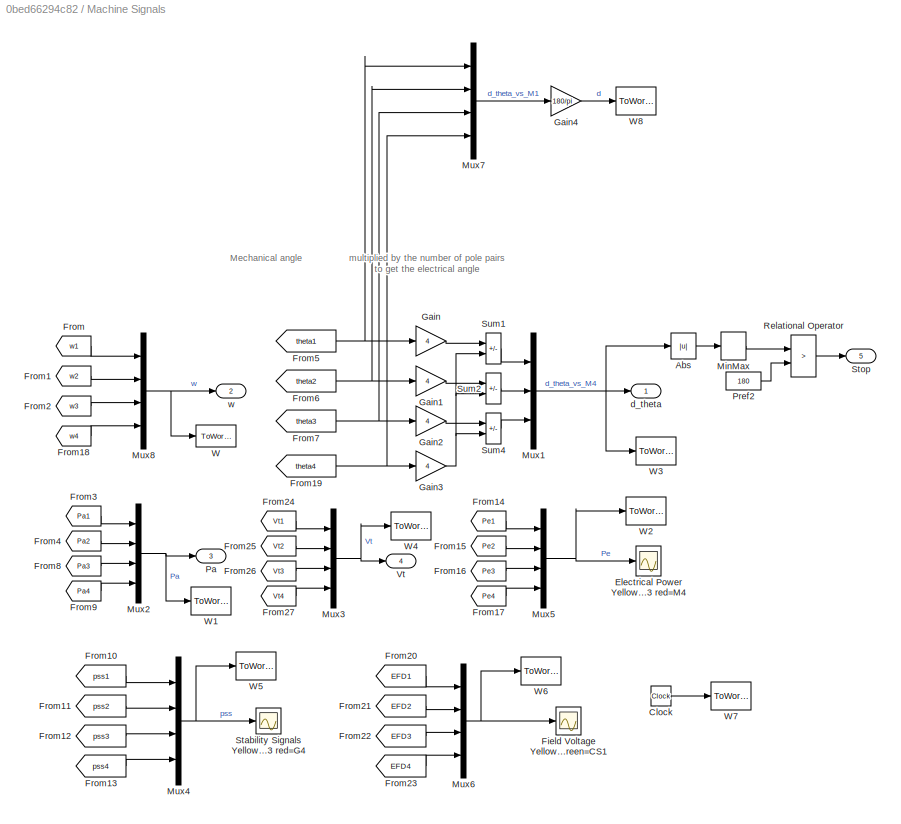
BLOCK [SubSystem] Machine Signals
  Ports = [0, 5]
  RequestExecContextInheritance = off
BLOCK [Abs] Machine Signals/Abs
BLOCK [Clock] Machine Signals/Clock
BLOCK [Scope] Machine Signals/Electrical Power Yellow=M1 mag=M2 cyan=M3 red=M4 
  Floating = off
  NumInputPorts = 1
  Ports = [1]
  ScopeSpecificationString = Simulink.scopes.TimeScopeBlockCfg('CurrentConfiguration', extmgr.ConfigurationSet(extmgr.Configuration('Core','General UI',true),extmgr.Configuration('Core','Source UI',true),extmgr.Configuration('Sources','WiredSimulink',true,'DataLoggingVariableName','ScopeData1','DataLoggingSaveFormat','StructureWithTime','DataLoggingDecimation','1','DataLoggingDecimateData',true),extmgr.Configuration('Visuals'...<+1596ch>
BLOCK [Scope] Machine Signals/Field Voltage Yellow=G1 mag=G2 cyan=G3 red=G4 green=CS1
  Floating = off
  NumInputPorts = 1
  Ports = [1]
  ScopeSpecificationString = Simulink.scopes.TimeScopeBlockCfg('CurrentConfiguration', extmgr.ConfigurationSet(extmgr.Configuration('Core','General UI',true),extmgr.Configuration('Core','Source UI',true),extmgr.Configuration('Sources','WiredSimulink',true,'DataLoggingVariableName','ScopeData4','DataLoggingSaveFormat','StructureWithTime','DataLoggingDecimation','1','DataLoggingDecimateData',true),extmgr.Configuration('Visuals'...<+1584ch>
BLOCK [From] Machine Signals/From
  CloseFcn = tagdialog Close
  GotoTag = w1
  TagVisibility = global
BLOCK [From] Machine Signals/From1
  CloseFcn = tagdialog Close
  GotoTag = w2
  TagVisibility = global
BLOCK [From] Machine Signals/From10
  CloseFcn = tagdialog Close
  GotoTag = pss1
  TagVisibility = global
BLOCK [From] Machine Signals/From11
  CloseFcn = tagdialog Close
  GotoTag = pss2
  TagVisibility = global
BLOCK [From] Machine Signals/From12
  CloseFcn = tagdialog Close
  GotoTag = pss3
  TagVisibility = global
BLOCK [From] Machine Signals/From13
  CloseFcn = tagdialog Close
  GotoTag = pss4
  TagVisibility = global
BLOCK [From] Machine Signals/From14
  CloseFcn = tagdialog Close
  GotoTag = Pe1
  TagVisibility = global
BLOCK [From] Machine Signals/From15
  CloseFcn = tagdialog Close
  GotoTag = Pe2
  TagVisibility = global
BLOCK [From] Machine Signals/From16
  CloseFcn = tagdialog Close
  GotoTag = Pe3
  TagVisibility = global
BLOCK [From] Machine Signals/From17
  CloseFcn = tagdialog Close
  GotoTag = Pe4
  TagVisibility = global
BLOCK [From] Machine Signals/From18
  CloseFcn = tagdialog Close
  GotoTag = w4
  TagVisibility = global
BLOCK [From] Machine Signals/From19
  CloseFcn = tagdialog Close
  GotoTag = theta4
  TagVisibility = global
BLOCK [From] Machine Signals/From2
  CloseFcn = tagdialog Close
  GotoTag = w3
  TagVisibility = global
BLOCK [From] Machine Signals/From20
  CloseFcn = tagdialog Close
  GotoTag = EFD1
  TagVisibility = global
BLOCK [From] Machine Signals/From21
  CloseFcn = tagdialog Close
  GotoTag = EFD2
  TagVisibility = global
BLOCK [From] Machine Signals/From22
  CloseFcn = tagdialog Close
  GotoTag = EFD3
  TagVisibility = global
BLOCK [From] Machine Signals/From23
  CloseFcn = tagdialog Close
  GotoTag = EFD4
  TagVisibility = global
BLOCK [From] Machine Signals/From24
  CloseFcn = tagdialog Close
  GotoTag = Vt1
  TagVisibility = global
BLOCK [From] Machine Signals/From25
  CloseFcn = tagdialog Close
  GotoTag = Vt2
  TagVisibility = global
BLOCK [From] Machine Signals/From26
  CloseFcn = tagdialog Close
  GotoTag = Vt3
  TagVisibility = global
BLOCK [From] Machine Signals/From27
  CloseFcn = tagdialog Close
  GotoTag = Vt4
  TagVisibility = global
BLOCK [From] Machine Signals/From3
  CloseFcn = tagdialog Close
  GotoTag = Pa1
  TagVisibility = global
BLOCK [From] Machine Signals/From4
  CloseFcn = tagdialog Close
  GotoTag = Pa2
  TagVisibility = global
BLOCK [From] Machine Signals/From5
  CloseFcn = tagdialog Close
  GotoTag = theta1
  TagVisibility = global
BLOCK [From] Machine Signals/From6
  CloseFcn = tagdialog Close
  GotoTag = theta2
  TagVisibility = global
BLOCK [From] Machine Signals/From7
  CloseFcn = tagdialog Close
  GotoTag = theta3
  TagVisibility = global
BLOCK [From] Machine Signals/From8
  CloseFcn = tagdialog Close
  GotoTag = Pa3
  TagVisibility = global
BLOCK [From] Machine Signals/From9
  CloseFcn = tagdialog Close
  GotoTag = Pa4
  TagVisibility = global
BLOCK [Gain] Machine Signals/Gain
  Gain = 4
BLOCK [Gain] Machine Signals/Gain1
  Gain = 4
BLOCK [Gain] Machine Signals/Gain2
  Gain = 4
BLOCK [Gain] Machine Signals/Gain3
  Gain = 4
BLOCK [Gain] Machine Signals/Gain4
  Gain = 180/pi
BLOCK [MinMax] Machine Signals/MinMax
  Function = max
  InputSameDT = on
  Ports = [1, 1]
  SaturateOnIntegerOverflow = on
BLOCK [Mux] Machine Signals/Mux1
  DisplayOption = bar
  Inputs = 3
  Ports = [3, 1]
BLOCK [Mux] Machine Signals/Mux2
  DisplayOption = bar
  Ports = [4, 1]
BLOCK [Mux] Machine Signals/Mux3
  DisplayOption = bar
  Ports = [4, 1]
BLOCK [Mux] Machine Signals/Mux4
  DisplayOption = bar
  Ports = [4, 1]
BLOCK [Mux] Machine Signals/Mux5
  DisplayOption = bar
  Ports = [4, 1]
BLOCK [Mux] Machine Signals/Mux6
  DisplayOption = bar
  Ports = [4, 1]
BLOCK [Mux] Machine Signals/Mux7
  DisplayOption = bar
  Ports = [4, 1]
BLOCK [Mux] Machine Signals/Mux8
  DisplayOption = bar
  Ports = [4, 1]
BLOCK [Outport] Machine Signals/Pa
  Port = 3
  VectorParamsAs1DForOutWhenUnconnected = off
BLOCK [Constant] Machine Signals/Pref2
  NameLocation = top
  Value = 180
BLOCK [RelationalOperator] Machine Signals/Relational Operator
  Operator = >
  Ports = [2, 1]
BLOCK [Scope] Machine Signals/Stability Signals Yellow=G1 mag=G2 cyan=G3 red=G4 
  Floating = off
  NumInputPorts = 1
  Ports = [1]
  ScopeSpecificationString = Simulink.scopes.TimeScopeBlockCfg('CurrentConfiguration', extmgr.ConfigurationSet(extmgr.Configuration('Core','General UI',true),extmgr.Configuration('Core','Source UI',true),extmgr.Configuration('Sources','WiredSimulink',true,'DataLoggingVariableName','ScopeData3','DataLoggingSaveFormat','StructureWithTime','DataLoggingDecimation','1','DataLoggingDecimateData',true),extmgr.Configuration('Visuals'...<+1584ch>
BLOCK [Outport] Machine Signals/Stop
  Port = 5
  VectorParamsAs1DForOutWhenUnconnected = off
BLOCK [Sum] Machine Signals/Sum1
  IconShape = rectangular
  InputSameDT = on
  Inputs = +-
  OutDataTypeStr = Inherit: Same as first input
  Ports = [2, 1]
  SaturateOnIntegerOverflow = on
BLOCK [Sum] Machine Signals/Sum2
  IconShape = rectangular
  InputSameDT = on
  Inputs = +-
  OutDataTypeStr = Inherit: Same as first input
  Ports = [2, 1]
  SaturateOnIntegerOverflow = on
BLOCK [Sum] Machine Signals/Sum4
  IconShape = rectangular
  InputSameDT = on
  Inputs = +-
  OutDataTypeStr = Inherit: Same as first input
  Ports = [2, 1]
  SaturateOnIntegerOverflow = on
BLOCK [Outport] Machine Signals/Vt
  Port = 4
  VectorParamsAs1DForOutWhenUnconnected = off
BLOCK [ToWorkspace] Machine Signals/W
  MaxDataPoints = inf
  Ports = [1]
  SampleTime = 1/60
  VariableName = w
BLOCK [ToWorkspace] Machine Signals/W1
  MaxDataPoints = inf
  Ports = [1]
  SampleTime = 1/60
  VariableName = Pa
BLOCK [ToWorkspace] Machine Signals/W2
  MaxDataPoints = inf
  Ports = [1]
  SampleTime = 1/60
  VariableName = Pe
BLOCK [ToWorkspace] Machine Signals/W3
  MaxDataPoints = inf
  Ports = [1]
  SampleTime = 1/60
  VariableName = DTH
BLOCK [ToWorkspace] Machine Signals/W4
  MaxDataPoints = inf
  Ports = [1]
  SampleTime = 1/60
  VariableName = Vt
BLOCK [ToWorkspace] Machine Signals/W5
  MaxDataPoints = inf
  Ports = [1]
  SampleTime = 1/60
  VariableName = PSS
BLOCK [ToWorkspace] Machine Signals/W6
  MaxDataPoints = inf
  Ports = [1]
  SampleTime = 1/60
  VariableName = EFD
BLOCK [ToWorkspace] Machine Signals/W7
  MaxDataPoints = inf
  Ports = [1]
  SampleTime = 1/60
  VariableName = t
BLOCK [ToWorkspace] Machine Signals/W8
  MaxDataPoints = inf
  Ports = [1]
  SampleTime = -1
  VariableName = D
BLOCK [Outport] Machine Signals/d_theta
  VectorParamsAs1DForOutWhenUnconnected = off
BLOCK [Outport] Machine Signals/w
  Port = 2
  VectorParamsAs1DForOutWhenUnconnected = off
BLOCK [Scope] Machines
  Floating = off
  NameLocation = top
  NumInputPorts = 4
  Ports = [4]
  ScopeSpecificationString = Simulink.scopes.TimeScopeBlockCfg('CurrentConfiguration', extmgr.ConfigurationSet(extmgr.Configuration('Core','General UI',true),extmgr.Configuration('Core','Source UI',true),extmgr.Configuration('Sources','WiredSimulink',true,'DataLoggingVariableName','mach','DataLoggingSaveFormat','StructureWithTime','DataLoggingDecimation','1','DataLoggingDecimateData',true),extmgr.Configuration('Visuals','Time...<+3926ch>
BLOCK [Constant] PSS model
BLOCK [SubSystem] RL-Agent on timestamp
  Ports = [1]
  RequestExecContextInheritance = off
BLOCK [SubSystem] RL-Agent on timestamp/Call to Agent
  Ports = [2, 1, 0, 1]
  RequestExecContextInheritance = off
BLOCK [SubSystem] RL-Agent on timestamp/Call to Agent/MATLAB Function
  ErrorFcn = Stateflow.Translate.translate
  PermitHierarchicalResolution = ExplicitOnly
  Ports = [2, 2]
  RequestExecContextInheritance = off
  SFBlockType = MATLAB Function
  TreatAsAtomicUnit = on
BLOCK [Demux] RL-Agent on timestamp/Call to Agent/MATLAB Function/ Demux 
  Outputs = 1
  Ports = [1, 1]
BLOCK [S-Function] RL-Agent on timestamp/Call to Agent/MATLAB Function/ SFunction 
  EnableBusSupport = on
  FunctionName = sf_sfun
  PortCounts = [2 3]
  Ports = [2, 3]
  SFcnIsStateOwnerBlock = off
  SFunctionDeploymentMode = off
  Tag = Stateflow S-Function 2
BLOCK [Terminator] RL-Agent on timestamp/Call to Agent/MATLAB Function/ Terminator 
BLOCK [Outport] RL-Agent on timestamp/Call to Agent/MATLAB Function/action
BLOCK [Inport] RL-Agent on timestamp/Call to Agent/MATLAB Function/initPSS
BLOCK [Outport] RL-Agent on timestamp/Call to Agent/MATLAB Function/pureAction
  Port = 2
BLOCK [Inport] RL-Agent on timestamp/Call to Agent/MATLAB Function/state
  Port = 2
BLOCK [Mux] RL-Agent on timestamp/Call to Agent/Mux
  DisplayOption = bar
  Inputs = 3
  Ports = [3, 1]
BLOCK [ToWorkspace] RL-Agent on timestamp/Call to Agent/To Workspace
  FixptAsFi = on
  MaxDataPoints = inf
  Ports = [1]
  SampleTime = -1
  VariableName = A_simOutData
BLOCK [TriggerPort] RL-Agent on timestamp/Call to Agent/Trigger
  InitialTriggerSignalState = positive
  PortDimensions = 1
  Ports = []
  StatesWhenEnabling = held
  VariantControl = (inherit)
BLOCK [Outport] RL-Agent on timestamp/Call to Agent/action
BLOCK [Inport] RL-Agent on timestamp/Call to Agent/initPSS
  Port = 2
BLOCK [Inport] RL-Agent on timestamp/Call to Agent/state
BLOCK [Clock] RL-Agent on timestamp/Clock
BLOCK [Goto] RL-Agent on timestamp/Goto
  GotoTag = A_action
  TagVisibility = global
BLOCK [SubSystem] RL-Agent on timestamp/MATLAB Function
  ErrorFcn = Stateflow.Translate.translate
  PermitHierarchicalResolution = ExplicitOnly
  Ports = [2, 1]
  RequestExecContextInheritance = off
  SFBlockType = MATLAB Function
  TreatAsAtomicUnit = on
BLOCK [Demux] RL-Agent on timestamp/MATLAB Function/ Demux 
  Outputs = 1
  Ports = [1, 1]
BLOCK [S-Function] RL-Agent on timestamp/MATLAB Function/ SFunction 
  EnableBusSupport = on
  FunctionName = sf_sfun
  PortCounts = [2 2]
  Ports = [2, 2]
  SFcnIsStateOwnerBlock = off
  SFunctionDeploymentMode = off
  Tag = Stateflow S-Function 1
BLOCK [Terminator] RL-Agent on timestamp/MATLAB Function/ Terminator 
BLOCK [Outport] RL-Agent on timestamp/MATLAB Function/isTime
BLOCK [Inport] RL-Agent on timestamp/MATLAB Function/period
  Port = 2
BLOCK [Inport] RL-Agent on timestamp/MATLAB Function/time
BLOCK [Constant] RL-Agent on timestamp/Period
BLOCK [Inport] RL-Agent on timestamp/State
BLOCK [Switch] RL-Agent on timestamp/Switch
  InputSameDT = off
  SaturateOnIntegerOverflow = off
  Threshold = swi_threshlod
BLOCK [Constant] RL-Agent on timestamp/initial PSS Parameters
  Value = initPSSParams
  VectorParams1D = off
BLOCK [Stop] Stop simulation if loss of synchronism
BLOCK [SubSystem] SubSystem
  OpenFcn = openfig('psbPSSbode.fig');
  Ports = []
  RequestExecContextInheritance = off
BLOCK [SubSystem] SubSystem3
  OpenFcn = openfig('psbPSSstep.fig');
  Ports = []
  RequestExecContextInheritance = off
BLOCK [SubSystem] SubSystem4
  OpenFcn = openfig('psbPSSfault.fig');
  Ports = []
  RequestExecContextInheritance = off
BLOCK [Scope] System
  Floating = off
  NameLocation = top
  NumInputPorts = 2
  Ports = [2]
  ScopeSpecificationString = Simulink.scopes.TimeScopeBlockCfg('CurrentConfiguration', extmgr.ConfigurationSet(extmgr.Configuration('Core','General UI',true),extmgr.Configuration('Core','Source UI',true),extmgr.Configuration('Sources','WiredSimulink',true,'DataLoggingVariableName','mach1','DataLoggingSaveFormat','StructureWithTime','DataLoggingDecimation','1','DataLoggingDecimateData',true),extmgr.Configuration('Visuals','Tim...<+2385ch>
BLOCK [SubSystem] System Data
  NameLocation = top
  Ports = [0, 2]
  RequestExecContextInheritance = off
BLOCK [Gain] System Data/->MW
  Gain = 1e-6
  OutDataTypeStr = Inherit: Same as input
  ParamDataTypeStr = Inherit: Same as input
  SaturateOnIntegerOverflow = on
BLOCK [Gain] System Data/->pu
  Gain = 1/(230e3/sqrt(3)*sqrt(2))
  OutDataTypeStr = Inherit: Same as input
  ParamDataTypeStr = Inherit: Same as input
  SaturateOnIntegerOverflow = on
BLOCK [ComplexToMagnitudeAngle] System Data/Complex to Magnitude-Angle
  Output = Magnitude
  Ports = [1, 1]
BLOCK [ComplexToMagnitudeAngle] System Data/Complex to Magnitude-Angle1
  Output = Magnitude
  Ports = [1, 1]
BLOCK [From] System Data/From
  CloseFcn = tagdialog Close
  GotoTag = Vabc_B1
  TagVisibility = global
BLOCK [From] System Data/From1
  CloseFcn = tagdialog Close
  GotoTag = Iabc_B1
  TagVisibility = global
BLOCK [From] System Data/From2
  CloseFcn = tagdialog Close
  GotoTag = Vabc_B2
  TagVisibility = global
BLOCK [From] System Data/From3
  CloseFcn = tagdialog Close
  GotoTag = Iabc_B2
  TagVisibility = global
BLOCK [Mux] System Data/Mux
  DisplayOption = bar
  Inputs = 2
  Ports = [2, 1]
BLOCK [Outport] System Data/P_B1->B2
  Port = 2
  VectorParamsAs1DForOutWhenUnconnected = off
BLOCK [Reference] System Data/Power (3ph, Phasor)  REF=spsPower3phPhasorLib/Power
(3ph, Phasor)
  Ports = [2, 2]
  SourceBlock = spsPower3phPhasorLib/Power\n(3ph, Phasor)
  SourceProductBaseCode = PS
  SourceType = Power (3ph, Phasor)
BLOCK [Reference] System Data/Sequence Analyzer (Phasor)  REF=spsSequenceAnalyzerPhasorLib/Sequence Analyzer
(Phasor)
  Ports = [1, 2]
  SourceBlock = spsSequenceAnalyzerPhasorLib/Sequence Analyzer\n(Phasor)
  SourceProductBaseCode = PS
  SourceType = Sequence Analyzer (Phasor)
BLOCK [Reference] System Data/Sequence Analyzer (Phasor)1  REF=spsSequenceAnalyzerPhasorLib/Sequence Analyzer
(Phasor)
  Ports = [1, 2]
  SourceBlock = spsSequenceAnalyzerPhasorLib/Sequence Analyzer\n(Phasor)
  SourceProductBaseCode = PS
  SourceType = Sequence Analyzer (Phasor)
BLOCK [Terminator] System Data/Terminator
BLOCK [Terminator] System Data/Terminator1
BLOCK [Terminator] System Data/Terminator2
BLOCK [Terminator] System Data/Terminator3
BLOCK [Scope] System Data/Vabc_B1
  Floating = off
  NumInputPorts = 1
  Ports = [1]
  ScopeSpecificationString = Simulink.scopes.TimeScopeBlockCfg('CurrentConfiguration', extmgr.ConfigurationSet(extmgr.Configuration('Core','General UI',true),extmgr.Configuration('Core','Source UI',true),extmgr.Configuration('Sources','WiredSimulink',true,'DataLoggingVariableName','mach2','DataLoggingSaveFormat','StructureWithTime','DataLoggingDecimation','1','DataLoggingDecimateData',true),extmgr.Configuration('Visuals','Tim...<+1638ch>
BLOCK [Scope] System Data/Vabc_B2
  Floating = off
  NumInputPorts = 1
  Ports = [1]
  ScopeSpecificationString = Simulink.scopes.TimeScopeBlockCfg('CurrentConfiguration', extmgr.ConfigurationSet(extmgr.Configuration('Core','General UI',true),extmgr.Configuration('Core','Source UI',true),extmgr.Configuration('Sources','WiredSimulink',true,'DataLoggingVariableName','mach3','DataLoggingSaveFormat','StructureWithTime','DataLoggingDecimation','1','DataLoggingDecimateData',true),extmgr.Configuration('Visuals','Tim...<+1638ch>
BLOCK [Outport] System Data/Vps
  VectorParamsAs1DForOutWhenUnconnected = off
BLOCK [ToWorkspace] System Data/W2
  MaxDataPoints = inf
  Ports = [1]
  SampleTime = 1/60
  VariableName = P
BLOCK [Reference] powergui  REF=spspowerguiLib/powergui
  Ports = []
  Priority = 2
  SourceBlock = spspowerguiLib/powergui
  SourceProductBaseCode = PS
  SourceType = PSB option menu block
ANNOTATION (root): ---->
ANNOTATION (root): 0 (No PSS) 1 (MB-PSS) 2 (Delta w PSS from Kundur) 3 (Delta Pa PSS)
ANNOTATION (root): 0 Inherits 1 Custom
ANNOTATION (root): 413 MW
ANNOTATION (root): M1: yellow M2: magenta M3: cyan M4: red
ANNOTATION (root): Performance of Three PSS for Interarea Oscillations
ANNOTATION (root): Select a specific PSS model by typing:
ANNOTATION Area 1: 0 = No PSS 1 = MB-PSS
ANNOTATION Area 1: 2 = Delta w (Kundur)
ANNOTATION Area 1: 3 = Delta Pa
ANNOTATION Area 1: ==> to Bus B1
ANNOTATION Area 1: Area 1
ANNOTATION Area 1/M1: Turbine & Regulators: MACHINE 1
ANNOTATION Area 1/M1: Turbine & Regulators: Выбор пользовательского стабилизатора
ANNOTATION Area 1/M1: Turbine & Regulators/Custom PSS1: A_action(1) = Ts A_action(2) = Ks A_action(3) = Tw A_action(4:7) = T(1:4)
ANNOTATION Area 1/M2: Turbine & Regulators: MACHINE 2
ANNOTATION Area 2: 0 = No PSS 1 = MB-PSS
ANNOTATION Area 2: 2 = Delta w (Kundur)
ANNOTATION Area 2: 3 = Delta Pa
ANNOTATION Area 2: ==> to Bus B2
ANNOTATION Area 2: Area 2
ANNOTATION Area 2/M3: Turbine & Regulators: MACHINE 3
ANNOTATION Area 2/M4: Turbine & Regulators: MACHINE 4
ANNOTATION Machine Signals: Mechanical angle
ANNOTATION Machine Signals: multiplied by the number of pole pairs to get the electrical angle
NET Area 1/From:1 -> Area 1/M1: Turbine & Regulators:4, Area 1/M2: Turbine & Regulators:4
LINE Area 1/M1 900 MVA:1 -> Area 1/M1: Turbine & Regulators:1
NET Area 1/M1: Turbine & Regulators/Bus Selector:1 -> Area 1/M1: Turbine & Regulators/EXCITATION:2, Area 1/M1: Turbine & Regulators/Real-Imag to Complex:1
NET Area 1/M1: Turbine & Regulators/Bus Selector:2 -> Area 1/M1: Turbine & Regulators/EXCITATION:3, Area 1/M1: Turbine & Regulators/Real-Imag to Complex:2
LINE Area 1/M1: Turbine & Regulators/Bus Selector:3 -> Area 1/M1: Turbine & Regulators/STG:4
NET Area 1/M1: Turbine & Regulators/Bus Selector:4 -> Area 1/M1: Turbine & Regulators/Goto2:1, Area 1/M1: Turbine & Regulators/STG:3
NET Area 1/M1: Turbine & Regulators/Bus Selector:5 -> Area 1/M1: Turbine & Regulators/Goto6:1, Area 1/M1: Turbine & Regulators/Sum2:1
NET Area 1/M1: Turbine & Regulators/Bus Selector:6 -> Area 1/M1: Turbine & Regulators/Custom PSS1:1, Area 1/M1: Turbine & Regulators/Delta w PSS (Kundur) :1, Area 1/M1: Turbine & Regulators/MB-PSS :1
LINE Area 1/M1: Turbine & Regulators/Bus Selector:7 -> Area 1/M1: Turbine & Regulators/Goto:1
LINE Area 1/M1: Turbine & Regulators/Complex to Magnitude-Angle:1 -> Area 1/M1: Turbine & Regulators/Goto1:1
LINE Area 1/M1: Turbine & Regulators/Custom PSS1/(T1*s+1)//(T2*s+1):1 -> Area 1/M1: Turbine & Regulators/Custom PSS1/(T3*s+1)//(T4*s+1)1:1
LINE Area 1/M1: Turbine & Regulators/Custom PSS1/(T3*s+1)//(T4*s+1)1:1 -> Area 1/M1: Turbine & Regulators/Custom PSS1/Saturation1:1
LINE Area 1/M1: Turbine & Regulators/Custom PSS1/1//(Ts*s+1):1 -> Area 1/M1: Turbine & Regulators/Custom PSS1/Divide:1
LINE Area 1/M1: Turbine & Regulators/Custom PSS1/Constant1:1 -> Area 1/M1: Turbine & Regulators/Custom PSS1/Divide2:2
NET Area 1/M1: Turbine & Regulators/Custom PSS1/Constant2:1 -> Area 1/M1: Turbine & Regulators/Custom PSS1/1//(Ts*s+1):2, Area 1/M1: Turbine & Regulators/Custom PSS1/Divide1:1
LINE Area 1/M1: Turbine & Regulators/Custom PSS1/Constant3:1 -> Area 1/M1: Turbine & Regulators/Custom PSS1/Tw//(Tw*s+1):2
LINE Area 1/M1: Turbine & Regulators/Custom PSS1/Constant4:1 -> Area 1/M1: Turbine & Regulators/Custom PSS1/1//(Ts*s+1):4
LINE Area 1/M1: Turbine & Regulators/Custom PSS1/Constant5:1 -> Area 1/M1: Turbine & Regulators/Custom PSS1/Divide3:2
LINE Area 1/M1: Turbine & Regulators/Custom PSS1/Constant6:1 -> Area 1/M1: Turbine & Regulators/Custom PSS1/(T1*s+1)//(T2*s+1):2
LINE Area 1/M1: Turbine & Regulators/Custom PSS1/Constant7:1 -> Area 1/M1: Turbine & Regulators/Custom PSS1/Divide4:2
LINE Area 1/M1: Turbine & Regulators/Custom PSS1/Constant8:1 -> Area 1/M1: Turbine & Regulators/Custom PSS1/(T3*s+1)//(T4*s+1)1:2
LINE Area 1/M1: Turbine & Regulators/Custom PSS1/Demux:1 -> Area 1/M1: Turbine & Regulators/Custom PSS1/Goto:1
LINE Area 1/M1: Turbine & Regulators/Custom PSS1/Demux:2 -> Area 1/M1: Turbine & Regulators/Custom PSS1/Goto1:1
LINE Area 1/M1: Turbine & Regulators/Custom PSS1/Demux:3 -> Area 1/M1: Turbine & Regulators/Custom PSS1/Goto2:1
LINE Area 1/M1: Turbine & Regulators/Custom PSS1/Demux:4 -> Area 1/M1: Turbine & Regulators/Custom PSS1/Goto3:1
LINE Area 1/M1: Turbine & Regulators/Custom PSS1/Demux:5 -> Area 1/M1: Turbine & Regulators/Custom PSS1/Goto4:1
LINE Area 1/M1: Turbine & Regulators/Custom PSS1/Demux:6 -> Area 1/M1: Turbine & Regulators/Custom PSS1/Goto5:1
LINE Area 1/M1: Turbine & Regulators/Custom PSS1/Demux:7 -> Area 1/M1: Turbine & Regulators/Custom PSS1/Goto6:1
LINE Area 1/M1: Turbine & Regulators/Custom PSS1/Divide1:1 -> Area 1/M1: Turbine & Regulators/Custom PSS1/1//(Ts*s+1):3
LINE Area 1/M1: Turbine & Regulators/Custom PSS1/Divide2:1 -> Area 1/M1: Turbine & Regulators/Custom PSS1/Tw//(Tw*s+1):3
LINE Area 1/M1: Turbine & Regulators/Custom PSS1/Divide3:1 -> Area 1/M1: Turbine & Regulators/Custom PSS1/(T1*s+1)//(T2*s+1):3
LINE Area 1/M1: Turbine & Regulators/Custom PSS1/Divide4:1 -> Area 1/M1: Turbine & Regulators/Custom PSS1/(T3*s+1)//(T4*s+1)1:3
LINE Area 1/M1: Turbine & Regulators/Custom PSS1/Divide:1 -> Area 1/M1: Turbine & Regulators/Custom PSS1/Tw//(Tw*s+1):1
LINE Area 1/M1: Turbine & Regulators/Custom PSS1/From:1 -> Area 1/M1: Turbine & Regulators/Custom PSS1/Demux:1
LINE Area 1/M1: Turbine & Regulators/Custom PSS1/K_s:1 -> Area 1/M1: Turbine & Regulators/Custom PSS1/Divide:2
LINE Area 1/M1: Turbine & Regulators/Custom PSS1/Saturation1:1 -> Area 1/M1: Turbine & Regulators/Custom PSS1/Vstab:1
LINE Area 1/M1: Turbine & Regulators/Custom PSS1/T_1:1 -> Area 1/M1: Turbine & Regulators/Custom PSS1/(T1*s+1)//(T2*s+1):4
LINE Area 1/M1: Turbine & Regulators/Custom PSS1/T_2:1 -> Area 1/M1: Turbine & Regulators/Custom PSS1/Divide3:1
LINE Area 1/M1: Turbine & Regulators/Custom PSS1/T_3:1 -> Area 1/M1: Turbine & Regulators/Custom PSS1/(T3*s+1)//(T4*s+1)1:4
LINE Area 1/M1: Turbine & Regulators/Custom PSS1/T_4:1 -> Area 1/M1: Turbine & Regulators/Custom PSS1/Divide4:1
LINE Area 1/M1: Turbine & Regulators/Custom PSS1/T_s:1 -> Area 1/M1: Turbine & Regulators/Custom PSS1/Divide1:2
NET Area 1/M1: Turbine & Regulators/Custom PSS1/T_w:1 -> Area 1/M1: Turbine & Regulators/Custom PSS1/Divide2:1, Area 1/M1: Turbine & Regulators/Custom PSS1/Tw//(Tw*s+1):4
LINE Area 1/M1: Turbine & Regulators/Custom PSS1/Tw//(Tw*s+1):1 -> Area 1/M1: Turbine & Regulators/Custom PSS1/(T1*s+1)//(T2*s+1):1
LINE Area 1/M1: Turbine & Regulators/Custom PSS1/dw:1 -> Area 1/M1: Turbine & Regulators/Custom PSS1/1//(Ts*s+1):1
LINE Area 1/M1: Turbine & Regulators/Custom PSS1:1 -> Area 1/M1: Turbine & Regulators/Multiport Switch1:3
LINE Area 1/M1: Turbine & Regulators/Delta Pa PSS :1 -> Area 1/M1: Turbine & Regulators/Multiport Switch:5
LINE Area 1/M1: Turbine & Regulators/Delta w PSS (Kundur) :1 -> Area 1/M1: Turbine & Regulators/Multiport Switch:4
NET Area 1/M1: Turbine & Regulators/EXCITATION:1 -> Area 1/M1: Turbine & Regulators/Goto5:1, Area 1/M1: Turbine & Regulators/Vf:1
LINE Area 1/M1: Turbine & Regulators/M1_customPSS:1 -> Area 1/M1: Turbine & Regulators/Sum3:1
LINE Area 1/M1: Turbine & Regulators/MB-PSS :1 -> Area 1/M1: Turbine & Regulators/Multiport Switch:3
NET Area 1/M1: Turbine & Regulators/Multiport Switch1:1 -> Area 1/M1: Turbine & Regulators/EXCITATION:4, Area 1/M1: Turbine & Regulators/Goto4:1
LINE Area 1/M1: Turbine & Regulators/Multiport Switch:1 -> Area 1/M1: Turbine & Regulators/Multiport Switch1:2
LINE Area 1/M1: Turbine & Regulators/PSS model1:1 -> Area 1/M1: Turbine & Regulators/Multiport Switch:2
LINE Area 1/M1: Turbine & Regulators/PSS model2:1 -> Area 1/M1: Turbine & Regulators/Sum1:2
LINE Area 1/M1: Turbine & Regulators/PSS model4:1 -> Area 1/M1: Turbine & Regulators/Sum3:2
LINE Area 1/M1: Turbine & Regulators/PSS:1 -> Area 1/M1: Turbine & Regulators/Sum1:1
LINE Area 1/M1: Turbine & Regulators/Pref:1 -> Area 1/M1: Turbine & Regulators/STG:2
LINE Area 1/M1: Turbine & Regulators/Real-Imag to Complex:1 -> Area 1/M1: Turbine & Regulators/Complex to Magnitude-Angle:1
LINE Area 1/M1: Turbine & Regulators/STG:1 -> Area 1/M1: Turbine & Regulators/Terminator2:1
LINE Area 1/M1: Turbine & Regulators/STG:2 -> Area 1/M1: Turbine & Regulators/Terminator1:1
LINE Area 1/M1: Turbine & Regulators/STG:3 -> Area 1/M1: Turbine & Regulators/Terminator:1
NET Area 1/M1: Turbine & Regulators/STG:4 -> Area 1/M1: Turbine & Regulators/Pm:1, Area 1/M1: Turbine & Regulators/Sum2:2
LINE Area 1/M1: Turbine & Regulators/Sum1:1 -> Area 1/M1: Turbine & Regulators/Multiport Switch:1
NET Area 1/M1: Turbine & Regulators/Sum2:1 -> Area 1/M1: Turbine & Regulators/Delta Pa PSS :1, Area 1/M1: Turbine & Regulators/Goto3:1
LINE Area 1/M1: Turbine & Regulators/Sum3:1 -> Area 1/M1: Turbine & Regulators/Multiport Switch1:1
LINE Area 1/M1: Turbine & Regulators/Vref:1 -> Area 1/M1: Turbine & Regulators/EXCITATION:1
LINE Area 1/M1: Turbine & Regulators/m:1 -> Area 1/M1: Turbine & Regulators/Bus Selector:1
LINE Area 1/M1: Turbine & Regulators/wref:1 -> Area 1/M1: Turbine & Regulators/STG:1
LINE Area 1/M1: Turbine & Regulators:1 -> Area 1/M1 900 MVA:1
LINE Area 1/M1: Turbine & Regulators:2 -> Area 1/M1 900 MVA:2
LINE Area 1/M2 900 MVA:1 -> Area 1/M2: Turbine & Regulators:1
NET Area 1/M2: Turbine & Regulators/Bus Selector:1 -> Area 1/M2: Turbine & Regulators/EXCITATION:2, Area 1/M2: Turbine & Regulators/Real-Imag to Complex:1
NET Area 1/M2: Turbine & Regulators/Bus Selector:2 -> Area 1/M2: Turbine & Regulators/EXCITATION:3, Area 1/M2: Turbine & Regulators/Real-Imag to Complex:2
LINE Area 1/M2: Turbine & Regulators/Bus Selector:3 -> Area 1/M2: Turbine & Regulators/STG:4
NET Area 1/M2: Turbine & Regulators/Bus Selector:4 -> Area 1/M2: Turbine & Regulators/Goto2:1, Area 1/M2: Turbine & Regulators/STG:3
NET Area 1/M2: Turbine & Regulators/Bus Selector:5 -> Area 1/M2: Turbine & Regulators/Goto6:1, Area 1/M2: Turbine & Regulators/Sum2:1
NET Area 1/M2: Turbine & Regulators/Bus Selector:6 -> Area 1/M2: Turbine & Regulators/Delta w PSS (Kundur) :1, Area 1/M2: Turbine & Regulators/MB-PSS :1
LINE Area 1/M2: Turbine & Regulators/Bus Selector:7 -> Area 1/M2: Turbine & Regulators/Goto:1
LINE Area 1/M2: Turbine & Regulators/Complex to Magnitude-Angle:1 -> Area 1/M2: Turbine & Regulators/Goto1:1
LINE Area 1/M2: Turbine & Regulators/Delta Pa PSS :1 -> Area 1/M2: Turbine & Regulators/Multiport Switch:5
LINE Area 1/M2: Turbine & Regulators/Delta w PSS (Kundur) :1 -> Area 1/M2: Turbine & Regulators/Multiport Switch:4
NET Area 1/M2: Turbine & Regulators/EXCITATION:1 -> Area 1/M2: Turbine & Regulators/Goto5:1, Area 1/M2: Turbine & Regulators/Vf:1
LINE Area 1/M2: Turbine & Regulators/MB-PSS :1 -> Area 1/M2: Turbine & Regulators/Multiport Switch:3
NET Area 1/M2: Turbine & Regulators/Multiport Switch:1 -> Area 1/M2: Turbine & Regulators/EXCITATION:4, Area 1/M2: Turbine & Regulators/Goto4:1
LINE Area 1/M2: Turbine & Regulators/PSS model1:1 -> Area 1/M2: Turbine & Regulators/Multiport Switch:2
LINE Area 1/M2: Turbine & Regulators/PSS model2:1 -> Area 1/M2: Turbine & Regulators/Sum1:2
LINE Area 1/M2: Turbine & Regulators/PSS:1 -> Area 1/M2: Turbine & Regulators/Sum1:1
LINE Area 1/M2: Turbine & Regulators/Pref:1 -> Area 1/M2: Turbine & Regulators/STG:2
LINE Area 1/M2: Turbine & Regulators/Real-Imag to Complex:1 -> Area 1/M2: Turbine & Regulators/Complex to Magnitude-Angle:1
LINE Area 1/M2: Turbine & Regulators/STG:1 -> Area 1/M2: Turbine & Regulators/Terminator:1
LINE Area 1/M2: Turbine & Regulators/STG:2 -> Area 1/M2: Turbine & Regulators/Terminator1:1
LINE Area 1/M2: Turbine & Regulators/STG:3 -> Area 1/M2: Turbine & Regulators/Terminator2:1
NET Area 1/M2: Turbine & Regulators/STG:4 -> Area 1/M2: Turbine & Regulators/Pm:1, Area 1/M2: Turbine & Regulators/Sum2:2
LINE Area 1/M2: Turbine & Regulators/Sum1:1 -> Area 1/M2: Turbine & Regulators/Multiport Switch:1
NET Area 1/M2: Turbine & Regulators/Sum2:1 -> Area 1/M2: Turbine & Regulators/Delta Pa PSS :1, Area 1/M2: Turbine & Regulators/Goto3:1
LINE Area 1/M2: Turbine & Regulators/Vref:1 -> Area 1/M2: Turbine & Regulators/EXCITATION:1
LINE Area 1/M2: Turbine & Regulators/m:1 -> Area 1/M2: Turbine & Regulators/Bus Selector:1
LINE Area 1/M2: Turbine & Regulators/wref:1 -> Area 1/M2: Turbine & Regulators/STG:1
LINE Area 1/M2: Turbine & Regulators:1 -> Area 1/M2 900 MVA:1
LINE Area 1/M2: Turbine & Regulators:2 -> Area 1/M2 900 MVA:2
LINE Area 1/Pref1:1 -> Area 1/M1: Turbine & Regulators:2
LINE Area 1/Pref2:1 -> Area 1/M2: Turbine & Regulators:2
LINE Area 1/Stair Generator:1 -> Area 1/Switch:2
LINE Area 1/Switch:1 -> Area 1/M1: Turbine & Regulators:3
LINE Area 1/Vref1 :1 -> Area 1/Switch:1
LINE Area 1/Vref1:1 -> Area 1/Switch:3
LINE Area 1/Vref2:1 -> Area 1/M2: Turbine & Regulators:3
NET Area 2/From:1 -> Area 2/M3: Turbine & Regulators:4, Area 2/M4: Turbine & Regulators:4
LINE Area 2/M3 900 MVA:1 -> Area 2/M3: Turbine & Regulators:1
NET Area 2/M3: Turbine & Regulators/Bus Selector:1 -> Area 2/M3: Turbine & Regulators/EXCITATION:2, Area 2/M3: Turbine & Regulators/Real-Imag to Complex:1
NET Area 2/M3: Turbine & Regulators/Bus Selector:2 -> Area 2/M3: Turbine & Regulators/EXCITATION:3, Area 2/M3: Turbine & Regulators/Real-Imag to Complex:2
LINE Area 2/M3: Turbine & Regulators/Bus Selector:3 -> Area 2/M3: Turbine & Regulators/STG:4
NET Area 2/M3: Turbine & Regulators/Bus Selector:4 -> Area 2/M3: Turbine & Regulators/Goto2:1, Area 2/M3: Turbine & Regulators/STG:3
NET Area 2/M3: Turbine & Regulators/Bus Selector:5 -> Area 2/M3: Turbine & Regulators/Goto6:1, Area 2/M3: Turbine & Regulators/Sum2:1
NET Area 2/M3: Turbine & Regulators/Bus Selector:6 -> Area 2/M3: Turbine & Regulators/Delta w PSS (Kundur) :1, Area 2/M3: Turbine & Regulators/MB-PSS :1
LINE Area 2/M3: Turbine & Regulators/Bus Selector:7 -> Area 2/M3: Turbine & Regulators/Goto:1
LINE Area 2/M3: Turbine & Regulators/Complex to Magnitude-Angle:1 -> Area 2/M3: Turbine & Regulators/Goto1:1
LINE Area 2/M3: Turbine & Regulators/Delta Pa PSS :1 -> Area 2/M3: Turbine & Regulators/Multiport Switch:5
LINE Area 2/M3: Turbine & Regulators/Delta w PSS (Kundur) :1 -> Area 2/M3: Turbine & Regulators/Multiport Switch:4
NET Area 2/M3: Turbine & Regulators/EXCITATION:1 -> Area 2/M3: Turbine & Regulators/Goto5:1, Area 2/M3: Turbine & Regulators/Vf:1
LINE Area 2/M3: Turbine & Regulators/MB-PSS :1 -> Area 2/M3: Turbine & Regulators/Multiport Switch:3
NET Area 2/M3: Turbine & Regulators/Multiport Switch:1 -> Area 2/M3: Turbine & Regulators/EXCITATION:4, Area 2/M3: Turbine & Regulators/Goto4:1
LINE Area 2/M3: Turbine & Regulators/PSS model1:1 -> Area 2/M3: Turbine & Regulators/Multiport Switch:2
LINE Area 2/M3: Turbine & Regulators/PSS model2:1 -> Area 2/M3: Turbine & Regulators/Sum1:2
LINE Area 2/M3: Turbine & Regulators/PSS:1 -> Area 2/M3: Turbine & Regulators/Sum1:1
LINE Area 2/M3: Turbine & Regulators/Pref:1 -> Area 2/M3: Turbine & Regulators/STG:2
LINE Area 2/M3: Turbine & Regulators/Real-Imag to Complex:1 -> Area 2/M3: Turbine & Regulators/Complex to Magnitude-Angle:1
LINE Area 2/M3: Turbine & Regulators/STG:1 -> Area 2/M3: Turbine & Regulators/Terminator:1
LINE Area 2/M3: Turbine & Regulators/STG:2 -> Area 2/M3: Turbine & Regulators/Terminator1:1
LINE Area 2/M3: Turbine & Regulators/STG:3 -> Area 2/M3: Turbine & Regulators/Terminator2:1
NET Area 2/M3: Turbine & Regulators/STG:4 -> Area 2/M3: Turbine & Regulators/Pm:1, Area 2/M3: Turbine & Regulators/Sum2:2
LINE Area 2/M3: Turbine & Regulators/Sum1:1 -> Area 2/M3: Turbine & Regulators/Multiport Switch:1
NET Area 2/M3: Turbine & Regulators/Sum2:1 -> Area 2/M3: Turbine & Regulators/Delta Pa PSS :1, Area 2/M3: Turbine & Regulators/Goto3:1
LINE Area 2/M3: Turbine & Regulators/Vref:1 -> Area 2/M3: Turbine & Regulators/EXCITATION:1
LINE Area 2/M3: Turbine & Regulators/m:1 -> Area 2/M3: Turbine & Regulators/Bus Selector:1
LINE Area 2/M3: Turbine & Regulators/wref:1 -> Area 2/M3: Turbine & Regulators/STG:1
LINE Area 2/M3: Turbine & Regulators:1 -> Area 2/M3 900 MVA:1
LINE Area 2/M3: Turbine & Regulators:2 -> Area 2/M3 900 MVA:2
LINE Area 2/M4 900 MVA:1 -> Area 2/M4: Turbine & Regulators:1
NET Area 2/M4: Turbine & Regulators/Bus Selector:1 -> Area 2/M4: Turbine & Regulators/EXCITATION:2, Area 2/M4: Turbine & Regulators/Real-Imag to Complex:1
NET Area 2/M4: Turbine & Regulators/Bus Selector:2 -> Area 2/M4: Turbine & Regulators/EXCITATION:3, Area 2/M4: Turbine & Regulators/Real-Imag to Complex:2
LINE Area 2/M4: Turbine & Regulators/Bus Selector:3 -> Area 2/M4: Turbine & Regulators/STG:4
NET Area 2/M4: Turbine & Regulators/Bus Selector:4 -> Area 2/M4: Turbine & Regulators/Goto2:1, Area 2/M4: Turbine & Regulators/STG:3
NET Area 2/M4: Turbine & Regulators/Bus Selector:5 -> Area 2/M4: Turbine & Regulators/Goto6:1, Area 2/M4: Turbine & Regulators/Sum2:1
NET Area 2/M4: Turbine & Regulators/Bus Selector:6 -> Area 2/M4: Turbine & Regulators/Delta w PSS (Kundur) :1, Area 2/M4: Turbine & Regulators/MB-PSS :1
LINE Area 2/M4: Turbine & Regulators/Bus Selector:7 -> Area 2/M4: Turbine & Regulators/Goto:1
LINE Area 2/M4: Turbine & Regulators/Complex to Magnitude-Angle:1 -> Area 2/M4: Turbine & Regulators/Goto1:1
LINE Area 2/M4: Turbine & Regulators/Delta Pa PSS :1 -> Area 2/M4: Turbine & Regulators/Multiport Switch:5
LINE Area 2/M4: Turbine & Regulators/Delta w PSS (Kundur) :1 -> Area 2/M4: Turbine & Regulators/Multiport Switch:4
NET Area 2/M4: Turbine & Regulators/EXCITATION:1 -> Area 2/M4: Turbine & Regulators/Goto5:1, Area 2/M4: Turbine & Regulators/Vf:1
LINE Area 2/M4: Turbine & Regulators/MB-PSS :1 -> Area 2/M4: Turbine & Regulators/Multiport Switch:3
NET Area 2/M4: Turbine & Regulators/Multiport Switch:1 -> Area 2/M4: Turbine & Regulators/EXCITATION:4, Area 2/M4: Turbine & Regulators/Goto4:1
LINE Area 2/M4: Turbine & Regulators/PSS model1:1 -> Area 2/M4: Turbine & Regulators/Multiport Switch:2
LINE Area 2/M4: Turbine & Regulators/PSS model2:1 -> Area 2/M4: Turbine & Regulators/Sum1:2
LINE Area 2/M4: Turbine & Regulators/PSS:1 -> Area 2/M4: Turbine & Regulators/Sum1:1
LINE Area 2/M4: Turbine & Regulators/Pref:1 -> Area 2/M4: Turbine & Regulators/STG:2
LINE Area 2/M4: Turbine & Regulators/Real-Imag to Complex:1 -> Area 2/M4: Turbine & Regulators/Complex to Magnitude-Angle:1
LINE Area 2/M4: Turbine & Regulators/STG:1 -> Area 2/M4: Turbine & Regulators/Terminator2:1
LINE Area 2/M4: Turbine & Regulators/STG:2 -> Area 2/M4: Turbine & Regulators/Terminator1:1
LINE Area 2/M4: Turbine & Regulators/STG:3 -> Area 2/M4: Turbine & Regulators/Terminator:1
NET Area 2/M4: Turbine & Regulators/STG:4 -> Area 2/M4: Turbine & Regulators/Pm:1, Area 2/M4: Turbine & Regulators/Sum2:2
LINE Area 2/M4: Turbine & Regulators/Sum1:1 -> Area 2/M4: Turbine & Regulators/Multiport Switch:1
NET Area 2/M4: Turbine & Regulators/Sum2:1 -> Area 2/M4: Turbine & Regulators/Delta Pa PSS :1, Area 2/M4: Turbine & Regulators/Goto3:1
LINE Area 2/M4: Turbine & Regulators/Vref:1 -> Area 2/M4: Turbine & Regulators/EXCITATION:1
LINE Area 2/M4: Turbine & Regulators/m:1 -> Area 2/M4: Turbine & Regulators/Bus Selector:1
LINE Area 2/M4: Turbine & Regulators/wref:1 -> Area 2/M4: Turbine & Regulators/STG:1
LINE Area 2/M4: Turbine & Regulators:1 -> Area 2/M4 900 MVA:1
LINE Area 2/M4: Turbine & Regulators:2 -> Area 2/M4 900 MVA:2
LINE Area 2/Pref3:1 -> Area 2/M3: Turbine & Regulators:2
LINE Area 2/Pref4:1 -> Area 2/M4: Turbine & Regulators:2
LINE Area 2/Vref3:1 -> Area 2/M3: Turbine & Regulators:3
LINE Area 2/Vref4:1 -> Area 2/M4: Turbine & Regulators:3
LINE Custom PSS M1:1 -> Goto1:1
LINE From:1 -> Display:1
LINE Machine Signals/Abs:1 -> Machine Signals/MinMax:1
LINE Machine Signals/Clock:1 -> Machine Signals/W7:1
LINE Machine Signals/From10:1 -> Machine Signals/Mux4:1
LINE Machine Signals/From11:1 -> Machine Signals/Mux4:2
LINE Machine Signals/From12:1 -> Machine Signals/Mux4:3
LINE Machine Signals/From13:1 -> Machine Signals/Mux4:4
LINE Machine Signals/From14:1 -> Machine Signals/Mux5:1
LINE Machine Signals/From15:1 -> Machine Signals/Mux5:2
LINE Machine Signals/From16:1 -> Machine Signals/Mux5:3
LINE Machine Signals/From17:1 -> Machine Signals/Mux5:4
LINE Machine Signals/From18:1 -> Machine Signals/Mux8:4
NET Machine Signals/From19:1 -> Machine Signals/Gain3:1, Machine Signals/Mux7:4
LINE Machine Signals/From1:1 -> Machine Signals/Mux8:2
LINE Machine Signals/From20:1 -> Machine Signals/Mux6:1
LINE Machine Signals/From21:1 -> Machine Signals/Mux6:2
LINE Machine Signals/From22:1 -> Machine Signals/Mux6:3
LINE Machine Signals/From23:1 -> Machine Signals/Mux6:4
LINE Machine Signals/From24:1 -> Machine Signals/Mux3:1
LINE Machine Signals/From25:1 -> Machine Signals/Mux3:2
LINE Machine Signals/From26:1 -> Machine Signals/Mux3:3
LINE Machine Signals/From27:1 -> Machine Signals/Mux3:4
LINE Machine Signals/From2:1 -> Machine Signals/Mux8:3
LINE Machine Signals/From3:1 -> Machine Signals/Mux2:1
LINE Machine Signals/From4:1 -> Machine Signals/Mux2:2
NET Machine Signals/From5:1 -> Machine Signals/Gain:1, Machine Signals/Mux7:1
NET Machine Signals/From6:1 -> Machine Signals/Gain1:1, Machine Signals/Mux7:2
NET Machine Signals/From7:1 -> Machine Signals/Gain2:1, Machine Signals/Mux7:3
LINE Machine Signals/From8:1 -> Machine Signals/Mux2:3
LINE Machine Signals/From9:1 -> Machine Signals/Mux2:4
LINE Machine Signals/From:1 -> Machine Signals/Mux8:1
LINE Machine Signals/Gain1:1 -> Machine Signals/Sum2:1
LINE Machine Signals/Gain2:1 -> Machine Signals/Sum4:1
NET Machine Signals/Gain3:1 -> Machine Signals/Sum1:2, Machine Signals/Sum2:2, Machine Signals/Sum4:2
LINE Machine Signals/Gain4:1 -> Machine Signals/W8:1
LINE Machine Signals/Gain:1 -> Machine Signals/Sum1:1
LINE Machine Signals/MinMax:1 -> Machine Signals/Relational Operator:1
NET Machine Signals/Mux1:1 -> Machine Signals/Abs:1, Machine Signals/W3:1, Machine Signals/d_theta:1
NET Machine Signals/Mux2:1 -> Machine Signals/Pa:1, Machine Signals/W1:1
NET Machine Signals/Mux3:1 -> Machine Signals/Vt:1, Machine Signals/W4:1
NET Machine Signals/Mux4:1 -> Machine Signals/Stability Signals Yellow=G1 mag=G2 cyan=G3 red=G4 :1, Machine Signals/W5:1
NET Machine Signals/Mux5:1 -> Machine Signals/Electrical Power Yellow=M1 mag=M2 cyan=M3 red=M4 :1, Machine Signals/W2:1
NET Machine Signals/Mux6:1 -> Machine Signals/Field Voltage Yellow=G1 mag=G2 cyan=G3 red=G4 green=CS1:1, Machine Signals/W6:1
LINE Machine Signals/Mux7:1 -> Machine Signals/Gain4:1
NET Machine Signals/Mux8:1 -> Machine Signals/W:1, Machine Signals/w:1
LINE Machine Signals/Pref2:1 -> Machine Signals/Relational Operator:2
LINE Machine Signals/Relational Operator:1 -> Machine Signals/Stop:1
LINE Machine Signals/Sum1:1 -> Machine Signals/Mux1:1
LINE Machine Signals/Sum2:1 -> Machine Signals/Mux1:2
LINE Machine Signals/Sum4:1 -> Machine Signals/Mux1:3
LINE Machine Signals:1 -> Machines:1
NET Machine Signals:2 -> Machines:2, RL-Agent on timestamp:1
LINE Machine Signals:3 -> Machines:3
LINE Machine Signals:4 -> Machines:4
LINE Machine Signals:5 -> Stop simulation if loss of synchronism:1
LINE PSS model:1 -> Goto:1
NET RL-Agent on timestamp/Call to Agent/MATLAB Function:1 -> RL-Agent on timestamp/Call to Agent/Mux:1, RL-Agent on timestamp/Call to Agent/action:1
LINE RL-Agent on timestamp/Call to Agent/MATLAB Function:2 -> RL-Agent on timestamp/Call to Agent/Mux:2
LINE RL-Agent on timestamp/Call to Agent/Mux:1 -> RL-Agent on timestamp/Call to Agent/To Workspace:1
LINE RL-Agent on timestamp/Call to Agent/initPSS:1 -> RL-Agent on timestamp/Call to Agent/MATLAB Function:1
NET RL-Agent on timestamp/Call to Agent/state:1 -> RL-Agent on timestamp/Call to Agent/MATLAB Function:2, RL-Agent on timestamp/Call to Agent/Mux:3
LINE RL-Agent on timestamp/Call to Agent:1 -> RL-Agent on timestamp/Switch:1
NET RL-Agent on timestamp/Clock:1 -> RL-Agent on timestamp/MATLAB Function:1, RL-Agent on timestamp/Switch:2
LINE RL-Agent on timestamp/MATLAB Function:1 -> RL-Agent on timestamp/Call to Agent:trigger
LINE RL-Agent on timestamp/Period:1 -> RL-Agent on timestamp/MATLAB Function:2
LINE RL-Agent on timestamp/State:1 -> RL-Agent on timestamp/Call to Agent:1
LINE RL-Agent on timestamp/Switch:1 -> RL-Agent on timestamp/Goto:1
NET RL-Agent on timestamp/initial PSS Parameters:1 -> RL-Agent on timestamp/Call to Agent:2, RL-Agent on timestamp/Switch:3
NET System Data/->MW:1 -> System Data/P_B1->B2:1, System Data/W2:1
LINE System Data/->pu:1 -> System Data/Vps:1
LINE System Data/Complex to Magnitude-Angle1:1 -> System Data/Vabc_B2:1
LINE System Data/Complex to Magnitude-Angle:1 -> System Data/Vabc_B1:1
LINE System Data/From1:1 -> System Data/Power (3ph, Phasor):2
NET System Data/From2:1 -> System Data/Complex to Magnitude-Angle1:1, System Data/Sequence Analyzer (Phasor)1:1
LINE System Data/From3:1 -> System Data/Terminator:1
NET System Data/From:1 -> System Data/Complex to Magnitude-Angle:1, System Data/Power (3ph, Phasor):1, System Data/Sequence Analyzer (Phasor):1
LINE System Data/Mux:1 -> System Data/->pu:1
LINE System Data/Power (3ph, Phasor):1 -> System Data/->MW:1
LINE System Data/Power (3ph, Phasor):2 -> System Data/Terminator3:1
LINE System Data/Sequence Analyzer (Phasor)1:1 -> System Data/Mux:2
LINE System Data/Sequence Analyzer (Phasor)1:2 -> System Data/Terminator2:1
LINE System Data/Sequence Analyzer (Phasor):1 -> System Data/Mux:1
LINE System Data/Sequence Analyzer (Phasor):2 -> System Data/Terminator1:1
LINE System Data:1 -> System:1
LINE System Data:2 -> System:2
PNET net1: Area 1/ A:RConn1 -- Area 1/10 km Area 1:RConn1 -- Area 1/A1_Br_L:RConn3 -- Area 1/A1_Br_SCB:RConn1 -- Area 1/Area1_MainLoad:LConn1
PNET net2: Area 1/ B:RConn1 -- Area 1/10 km Area 1:RConn2 -- Area 1/A1_Br_L:RConn2 -- Area 1/A1_Br_SCB:RConn2 -- Area 1/Area1_MainLoad:LConn2
PNET net3: Area 1/ C:RConn1 -- Area 1/10 km Area 1:RConn3 -- Area 1/A1_Br_L:RConn1 -- Area 1/A1_Br_SCB:RConn3 -- Area 1/Area1_MainLoad:LConn3
PNET net4: Area 1/10 km Area 1:LConn1 -- Area 1/25km Area 1:RConn1 -- Area 1/KZ_A1_G2_HV:LConn1 -- Area 1/T2: 900MVA 20 kV//230 kV:RConn1
PNET net5: Area 1/10 km Area 1:LConn2 -- Area 1/25km Area 1:RConn2 -- Area 1/KZ_A1_G2_HV:LConn2 -- Area 1/T2: 900MVA 20 kV//230 kV:RConn2
PNET net6: Area 1/10 km Area 1:LConn3 -- Area 1/25km Area 1:RConn3 -- Area 1/KZ_A1_G2_HV:LConn3 -- Area 1/T2: 900MVA 20 kV//230 kV:RConn3
PNET net7: Area 1/25km Area 1:LConn1 -- Area 1/KZ_A1_G1_HV:LConn1 -- Area 1/T1: 900MVA 20 kV-230 kV:RConn1
PNET net8: Area 1/25km Area 1:LConn2 -- Area 1/KZ_A1_G1_HV:LConn2 -- Area 1/T1: 900MVA 20 kV-230 kV:RConn2
PNET net9: Area 1/25km Area 1:LConn3 -- Area 1/KZ_A1_G1_HV:LConn3 -- Area 1/T1: 900MVA 20 kV-230 kV:RConn3
PLINE Area 1/A1_Br_L:LConn1 -- Area 1/Area1_AddLoad:LConn1
PLINE Area 1/A1_Br_L:LConn2 -- Area 1/Area1_AddLoad:LConn2
PLINE Area 1/A1_Br_L:LConn3 -- Area 1/Area1_AddLoad:LConn3
PLINE Area 1/A1_Br_SCB:LConn1 -- Area 1/Area1_SCB:LConn1
PLINE Area 1/A1_Br_SCB:LConn2 -- Area 1/Area1_SCB:LConn2
PLINE Area 1/A1_Br_SCB:LConn3 -- Area 1/Area1_SCB:LConn3
PNET net10: Area 1/KZ_A1_G1_LV:LConn1 -- Area 1/Load Flow Bus:LConn1 -- Area 1/M1 900 MVA:RConn1 -- Area 1/T1: 900MVA 20 kV-230 kV:LConn1
PNET net11: Area 1/KZ_A1_G1_LV:LConn2 -- Area 1/M1 900 MVA:RConn2 -- Area 1/T1: 900MVA 20 kV-230 kV:LConn2
PNET net12: Area 1/KZ_A1_G1_LV:LConn3 -- Area 1/M1 900 MVA:RConn3 -- Area 1/T1: 900MVA 20 kV-230 kV:LConn3
PNET net13: Area 1/KZ_A1_G2_LV:LConn1 -- Area 1/Load Flow Bus1:LConn1 -- Area 1/M2 900 MVA:RConn1 -- Area 1/T2: 900MVA 20 kV//230 kV:LConn1
PNET net14: Area 1/KZ_A1_G2_LV:LConn2 -- Area 1/M2 900 MVA:RConn2 -- Area 1/T2: 900MVA 20 kV//230 kV:LConn2
PNET net15: Area 1/KZ_A1_G2_LV:LConn3 -- Area 1/M2 900 MVA:RConn3 -- Area 1/T2: 900MVA 20 kV//230 kV:LConn3
PLINE Area 1:RConn1 -- B1:LConn1
PLINE Area 1:RConn2 -- B1:LConn2
PLINE Area 1:RConn3 -- B1:LConn3
PNET net16: Area 2/10 km Area 2:LConn1 -- Area 2/25km Area 2:RConn1 -- Area 2/KZ_A2_G4_HV:LConn1 -- Area 2/T4: 900MVA 20 kV//230 kV:RConn1
PNET net17: Area 2/10 km Area 2:LConn2 -- Area 2/25km Area 2:RConn2 -- Area 2/KZ_A2_G4_HV:LConn2 -- Area 2/T4: 900MVA 20 kV//230 kV:RConn2
PNET net18: Area 2/10 km Area 2:LConn3 -- Area 2/25km Area 2:RConn3 -- Area 2/KZ_A2_G4_HV:LConn3 -- Area 2/T4: 900MVA 20 kV//230 kV:RConn3
PNET net19: Area 2/10 km Area 2:RConn1 -- Area 2/A2_Br_SCB:RConn1 -- Area 2/A:RConn1 -- Area 2/Area2_MainLoad:LConn1
PNET net20: Area 2/10 km Area 2:RConn2 -- Area 2/A2_Br_L:RConn2 -- Area 2/A2_Br_L:RConn3 -- Area 2/A2_Br_SCB:RConn2 -- Area 2/Area2_MainLoad:LConn2 -- Area 2/B:RConn1
PNET net21: Area 2/10 km Area 2:RConn3 -- Area 2/A2_Br_L:RConn1 -- Area 2/A2_Br_SCB:RConn3 -- Area 2/Area2_MainLoad:LConn3 -- Area 2/C:RConn1
PNET net22: Area 2/25km Area 2:LConn1 -- Area 2/KZ_A2_G3_HV:LConn1 -- Area 2/T3: 900MVA 20 kV-230 kV:RConn1
PNET net23: Area 2/25km Area 2:LConn2 -- Area 2/KZ_A2_G3_HV:LConn2 -- Area 2/T3: 900MVA 20 kV-230 kV:RConn2
PNET net24: Area 2/25km Area 2:LConn3 -- Area 2/KZ_A2_G3_HV:LConn3 -- Area 2/T3: 900MVA 20 kV-230 kV:RConn3
PLINE Area 2/A2_Br_L:LConn1 -- Area 2/Area2_AddLoad:LConn1
PLINE Area 2/A2_Br_L:LConn2 -- Area 2/Area2_AddLoad:LConn2
PLINE Area 2/A2_Br_L:LConn3 -- Area 2/Area2_AddLoad:LConn3
PLINE Area 2/A2_Br_SCB:LConn1 -- Area 2/Area2_SCB:LConn1
PLINE Area 2/A2_Br_SCB:LConn2 -- Area 2/Area2_SCB:LConn2
PLINE Area 2/A2_Br_SCB:LConn3 -- Area 2/Area2_SCB:LConn3
PNET net25: Area 2/KZ_A2_G3_LV:LConn1 -- Area 2/Load Flow Bus:LConn1 -- Area 2/M3 900 MVA:RConn1 -- Area 2/T3: 900MVA 20 kV-230 kV:LConn1
PNET net26: Area 2/KZ_A2_G3_LV:LConn2 -- Area 2/M3 900 MVA:RConn2 -- Area 2/T3: 900MVA 20 kV-230 kV:LConn2
PNET net27: Area 2/KZ_A2_G3_LV:LConn3 -- Area 2/M3 900 MVA:RConn3 -- Area 2/T3: 900MVA 20 kV-230 kV:LConn3
PNET net28: Area 2/KZ_A2_G4_LV:LConn1 -- Area 2/Load Flow Bus1:LConn1 -- Area 2/M4 900 MVA:RConn1 -- Area 2/T4: 900MVA 20 kV//230 kV:LConn1
PNET net29: Area 2/KZ_A2_G4_LV:LConn2 -- Area 2/M4 900 MVA:RConn2 -- Area 2/T4: 900MVA 20 kV//230 kV:LConn2
PNET net30: Area 2/KZ_A2_G4_LV:LConn3 -- Area 2/M4 900 MVA:RConn3 -- Area 2/T4: 900MVA 20 kV//230 kV:LConn3
PLINE Area 2:LConn1 -- B2:RConn1
PLINE Area 2:LConn2 -- B2:RConn2
PLINE Area 2:LConn3 -- B2:RConn3
PNET net31: B1:RConn1 -- Br_Line_begin:LConn1 -- Line 2 (220 km):LConn1 -- Load Flow Bus1:LConn1
PNET net32: B1:RConn2 -- Br_Line_begin:LConn2 -- Line 2 (220 km):LConn2
PNET net33: B1:RConn3 -- Br_Line_begin:LConn3 -- Line 2 (220 km):LConn3
PNET net34: B2:LConn1 -- Br_Line_end:RConn1 -- KZ_Le:LConn1 -- Line 2 (220 km):RConn1 -- Load Flow Bus:LConn1
PNET net35: B2:LConn2 -- Br_Line_end:RConn2 -- KZ_Le:LConn2 -- Line 2 (220 km):RConn2
PNET net36: B2:LConn3 -- Br_Line_end:RConn3 -- KZ_Le:LConn3 -- Line 2 (220 km):RConn3
PNET net37: Br_Line_begin:RConn1 -- KZ_Lb:LConn1 -- Line 1a:LConn1
PNET net38: Br_Line_begin:RConn2 -- KZ_Lb:LConn2 -- Line 1a:LConn2
PNET net39: Br_Line_begin:RConn3 -- KZ_Lb:LConn3 -- Line 1a:LConn3
PLINE Br_Line_end:LConn1 -- Line 1b:RConn1
PLINE Br_Line_end:LConn2 -- Line 1b:RConn2
PLINE Br_Line_end:LConn3 -- Line 1b:RConn3
PNET net40: KZ_Lm:LConn1 -- Line 1a:RConn1 -- Line 1b:LConn1
PNET net41: KZ_Lm:LConn2 -- Line 1a:RConn2 -- Line 1b:LConn2
PNET net42: KZ_Lm:LConn3 -- Line 1a:RConn3 -- Line 1b:LConn3
note: NET lines group one-source signal fan-out (src -> all destinations, sorted); 1:1 wires keep LINE; PNET lines group multi-terminal physical nets as a canonical sorted terminal list (undirected conserving connections); 2-terminal nets keep the pairwise PLINE form
CHART RL-Agent on timestamp/MATLAB Function states=1 transitions=1
  STATE_LABEL 'eML_blk_kernel()'
  STATE_LABEL 'SCRIPT:\nfunction isTime = trigger(time, period)\n    if (mod(time, period))\n        isTime = 0;\n        return;\n    end\n    isTime = 1;\nend\n'
CHART RL-Agent on timestamp/Call to Agent/MATLAB Function states=1 transitions=1
  STATE_LABEL 'eML_blk_kernel()'
  STATE_LABEL 'SCRIPT:\nfunction [action, pureAction] = agent(initPSS, state)\n    % Инициализация, требуемая компилятором\n    % Размерность зависит от того, на какой тип регулятора подается\n    % воздействие агента.\n    %\n    % NOTE: Привязать размерность к типу регулятора и вынести на верхний\n    % уровень модели\n    action = initPSS;\n    pureAction = initPSS;\n\n    % Вызов внешней m-функции-обёртки над pyrunfile...<+522ch>'
CHART  states=0 transitions=0
CHART  states=0 transitions=0
